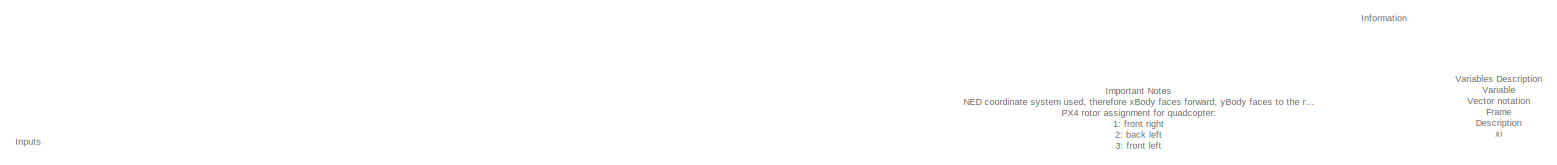
[diagram: root canvas - part 1/7, top center region]
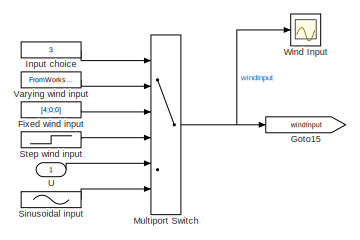
[diagram: root canvas - part 2/7, top left region]
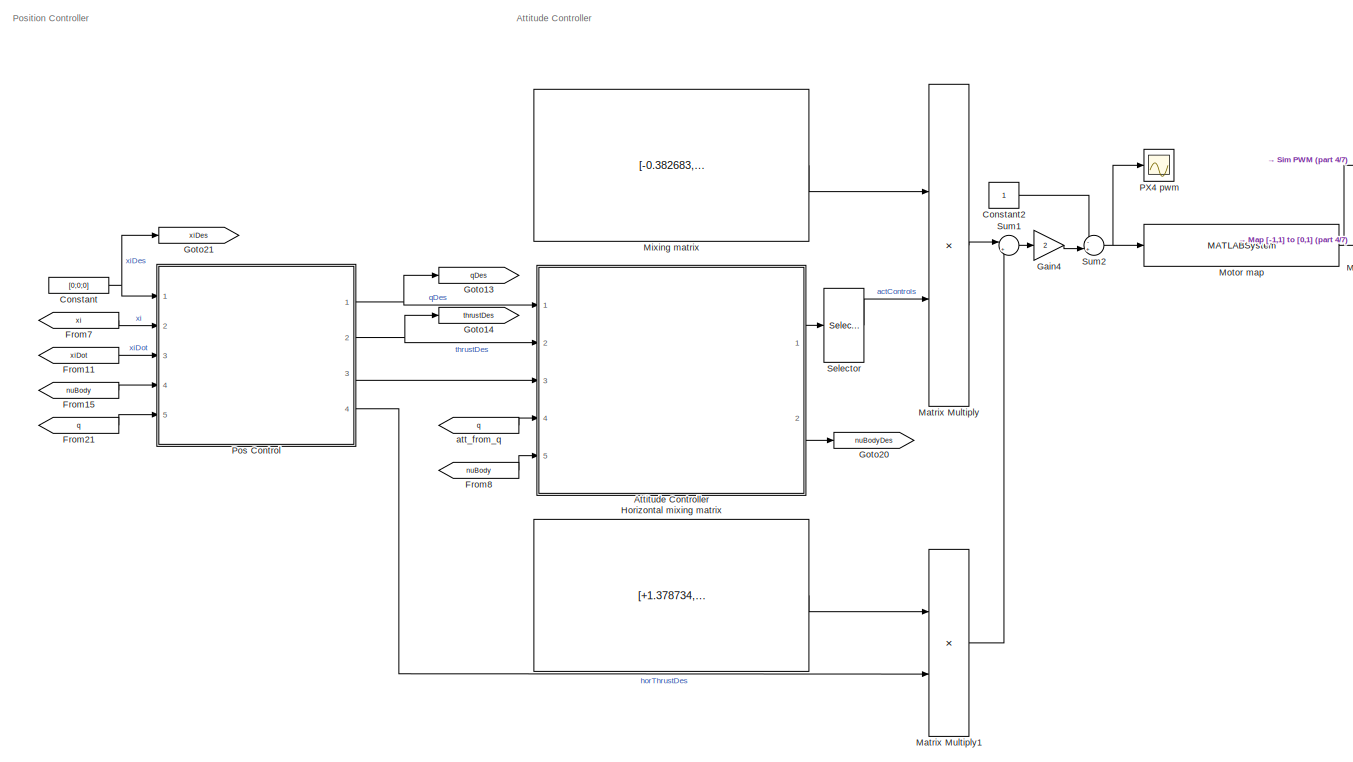
[diagram: root canvas - part 3/7, middle left region]
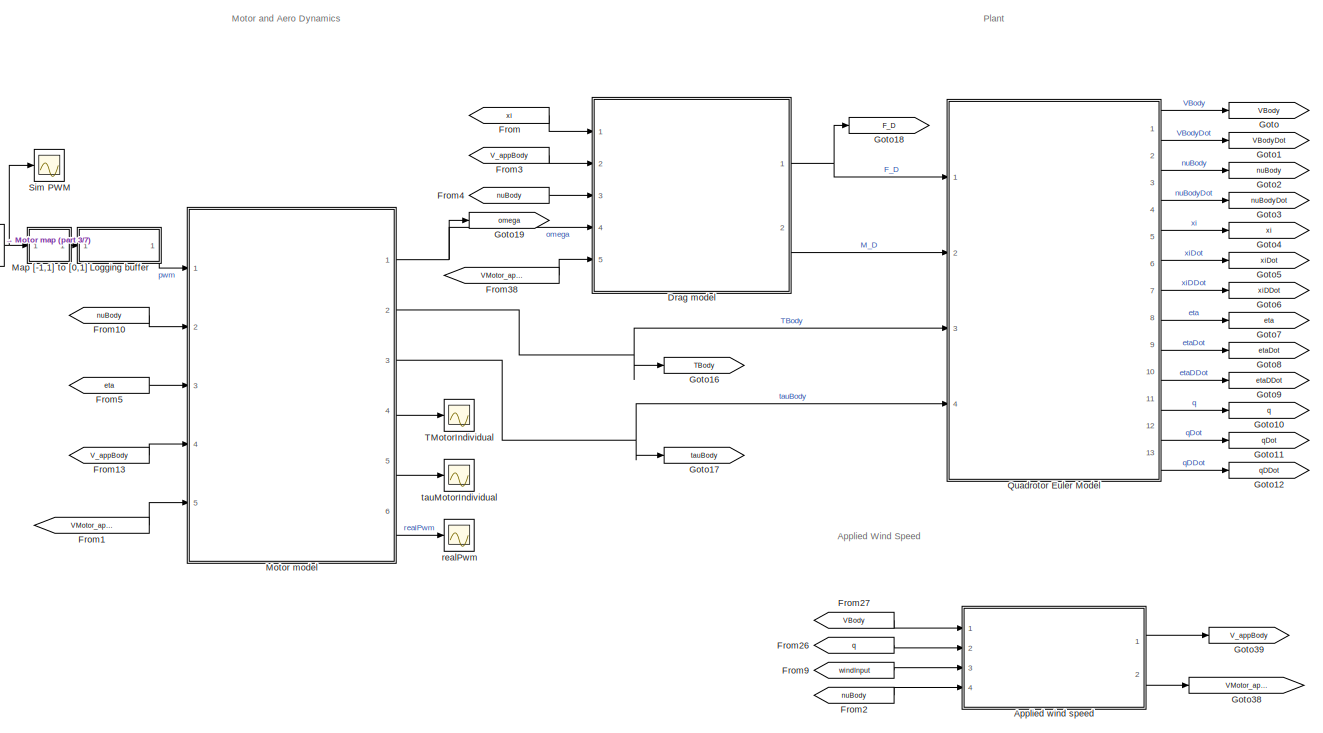
[diagram: root canvas - part 4/7, central region]
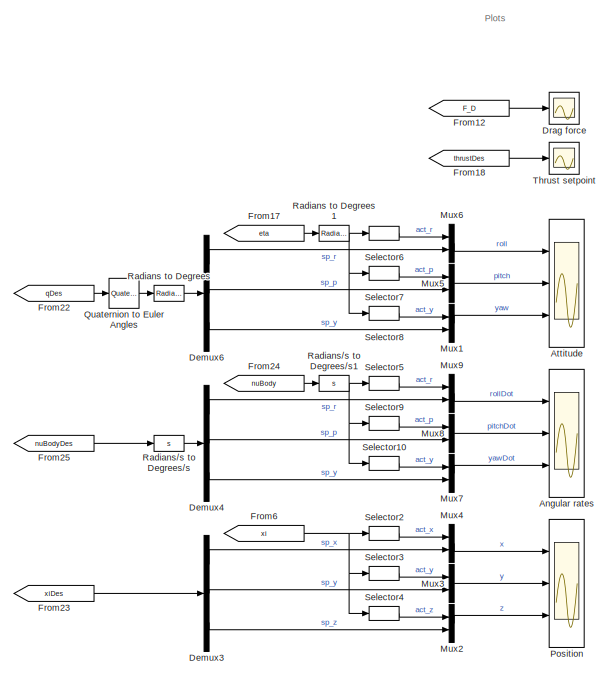
[diagram: root canvas - part 5/7, bottom center region]
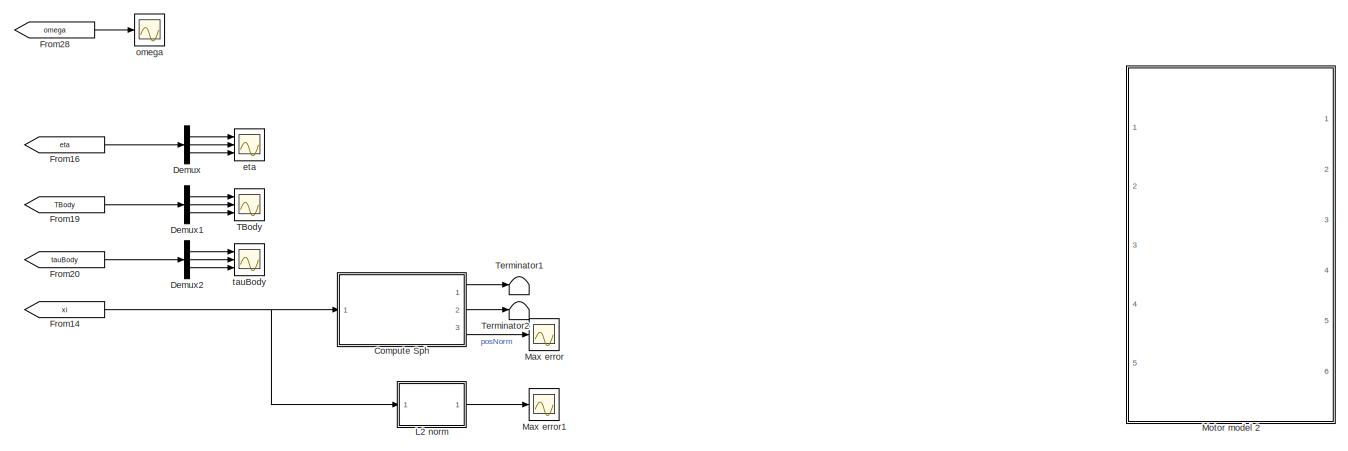
[diagram: root canvas - part 6/7, bottom right region]
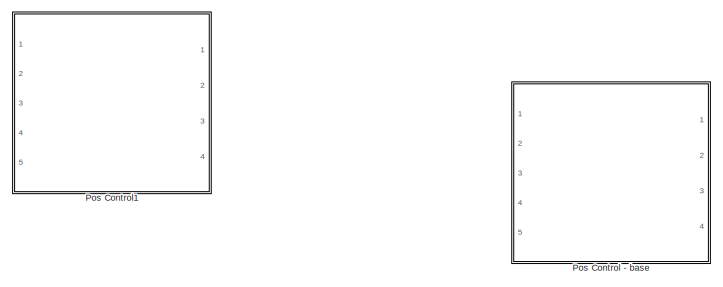
[diagram: root canvas - part 7/7, bottom left region]
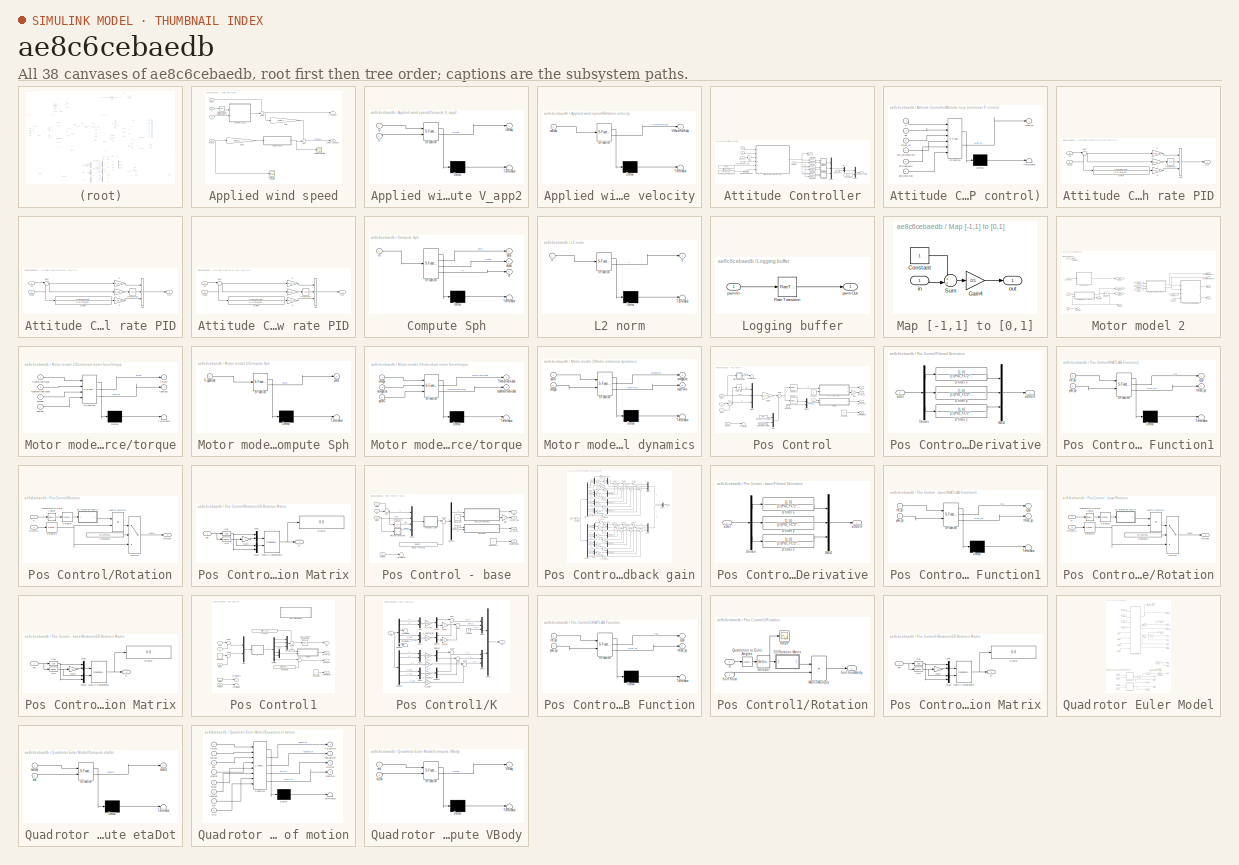
[diagram: thumbnail index - all 38 canvases of the model, root first then tree order]
MODEL slx_ae8c6cebaedb
KIND model
CONFIG AbsTol = auto
CONFIG EnableMultiTasking = on
CONFIG FixedStep = auto
CONFIG MaxStep = Simulation.TS_MAX
CONFIG MinStep = auto
CONFIG PreLoadFcn = % InitializeParameters;
CONFIG RelTol = 1e-3
CONFIG SampleTimeConstraint = Unconstrained
CONFIG SolverName = VariableStepAuto
CONFIG StartTime = 0.0
CONFIG StopTime = Simulation.T_END
BLOCK [Scope] Angular rates
  Floating = off
  NumInputPorts = 3
  Ports = [3]
  ScopeSpecificationString = Simulink.scopes.TimeScopeBlockCfg('CurrentConfiguration', extmgr.ConfigurationSet(extmgr.Configuration('Core','General UI',true),extmgr.Configuration('Core','Source UI',true),extmgr.Configuration('Sources','WiredSimulink',true,'DataLoggingVariableName','ScopeData1'),extmgr.Configuration('Visuals','Time Domain',true,'SerializedDisplays',{struct('MinYLimReal','-2.30552','MaxYLimReal','6.3064','YLabe...<+2801ch>
BLOCK [SubSystem] Applied wind speed
  Ports = [4, 2]
  RequestExecContextInheritance = off
BLOCK [SubSystem] Applied wind speed/Compute V_app2
  ErrorFcn = Stateflow.Translate.translate
  PermitHierarchicalResolution = ExplicitOnly
  Ports = [2, 1]
  RequestExecContextInheritance = off
  SFBlockType = MATLAB Function
  TreatAsAtomicUnit = on
BLOCK [Demux] Applied wind speed/Compute V_app2/ Demux 
  Outputs = 1
  Ports = [1, 1]
BLOCK [S-Function] Applied wind speed/Compute V_app2/ SFunction 
  EnableBusSupport = on
  FunctionName = sf_sfun
  PortCounts = [2 2]
  Ports = [2, 2]
  SFcnIsStateOwnerBlock = off
  SFunctionDeploymentMode = off
  Tag = Stateflow S-Function 5
BLOCK [Terminator] Applied wind speed/Compute V_app2/ Terminator 
BLOCK [Inport] Applied wind speed/Compute V_app2/Q
BLOCK [Inport] Applied wind speed/Compute V_app2/U
  Port = 2
BLOCK [Outport] Applied wind speed/Compute V_app2/UBody
  VectorParamsAs1DForOutWhenUnconnected = off
BLOCK [Gain] Applied wind speed/Gain
  Gain = ones(1,Uav.N_ROTORS)
  Multiplication = Matrix(u*K)
BLOCK [Gain] Applied wind speed/Gain1
  Gain = ones(1,Uav.N_ROTORS)
  Multiplication = Matrix(u*K)
BLOCK [Reference] Applied wind speed/Quaternion to Rotation Matrix1  REF=QuaternionLibrary/Quaternion
to Rotation Matrix
  Ports = [1, 1]
  SourceBlock = QuaternionLibrary/Quaternion\nto Rotation Matrix
BLOCK [Scope] Applied wind speed/Relative velocities
  Floating = off
  NumInputPorts = 1
  Ports = [1]
  ScopeSpecificationString = Simulink.scopes.TimeScopeBlockCfg('CurrentConfiguration', extmgr.ConfigurationSet(extmgr.Configuration('Core','General UI',true),extmgr.Configuration('Core','Source UI',true),extmgr.Configuration('Sources','WiredSimulink',true,'DataLoggingVariableName','ScopeData7'),extmgr.Configuration('Visuals','Time Domain',true,'SerializedDisplays',{struct('MinYLimReal','-0.10082','MaxYLimReal','0.10082','YLab...<+1971ch>
BLOCK [SubSystem] Applied wind speed/Relative velocity
  ErrorFcn = Stateflow.Translate.translate
  PermitHierarchicalResolution = ExplicitOnly
  Ports = [1, 1]
  RequestExecContextInheritance = off
  SFBlockType = MATLAB Function
  TreatAsAtomicUnit = on
BLOCK [Demux] Applied wind speed/Relative velocity/ Demux 
  Outputs = 1
  Ports = [1, 1]
BLOCK [S-Function] Applied wind speed/Relative velocity/ SFunction 
  EnableBusSupport = on
  FunctionName = sf_sfun
  Parameters = Uav
  PortCounts = [1 2]
  Ports = [1, 2]
  SFcnIsStateOwnerBlock = off
  SFunctionDeploymentMode = off
  Tag = Stateflow S-Function 4
BLOCK [Terminator] Applied wind speed/Relative velocity/ Terminator 
BLOCK [Outport] Applied wind speed/Relative velocity/VMotorRelBody
  VectorParamsAs1DForOutWhenUnconnected = off
BLOCK [Inport] Applied wind speed/Relative velocity/nuBody
BLOCK [Scope] Applied wind speed/Rotational velocities
  Floating = off
  NumInputPorts = 1
  Ports = [1]
  ScopeSpecificationString = Simulink.scopes.TimeScopeBlockCfg('CurrentConfiguration', extmgr.ConfigurationSet(extmgr.Configuration('Core','General UI',true),extmgr.Configuration('Core','Source UI',true),extmgr.Configuration('Sources','WiredSimulink',true,'DataLoggingVariableName','ScopeData8'),extmgr.Configuration('Visuals','Time Domain',true,'SerializedDisplays',{struct('MinYLimReal','-0.22625','MaxYLimReal','0.41313','YLab...<+1461ch>
BLOCK [Sum] Applied wind speed/Sum
  Inputs = ++|
  Ports = [2, 1]
BLOCK [Sum] Applied wind speed/Sum1
  Inputs = ++|
  Ports = [2, 1]
BLOCK [Inport] Applied wind speed/U
  Port = 3
  Unit = m/s
BLOCK [Inport] Applied wind speed/VBody
  Unit = m/s
BLOCK [Outport] Applied wind speed/VMotor_appBody
  Port = 2
  PortDimensions = [3,Uav.N_ROTORS]
  Unit = m/s
  VectorParamsAs1DForOutWhenUnconnected = off
BLOCK [Outport] Applied wind speed/V_appBody
  Unit = m/s
  VectorParamsAs1DForOutWhenUnconnected = off
BLOCK [Inport] Applied wind speed/nuBody
  Port = 4
  Unit = rad/s
BLOCK [Inport] Applied wind speed/q
  Port = 2
BLOCK [Scope] Attitude
  Floating = off
  NumInputPorts = 3
  Ports = [3]
  ScopeSpecificationString = Simulink.scopes.TimeScopeBlockCfg('CurrentConfiguration', extmgr.ConfigurationSet(extmgr.Configuration('Core','General UI',true),extmgr.Configuration('Core','Source UI',true),extmgr.Configuration('Sources','WiredSimulink',true,'DataLoggingVariableName','ScopeData2'),extmgr.Configuration('Visuals','Time Domain',true,'SerializedDisplays',{struct('MinYLimReal','-0.19785','MaxYLimReal','1.78066','YLab...<+3156ch>
BLOCK [SubSystem] Attitude Controller
  Ports = [5, 2]
  RequestExecContextInheritance = off
BLOCK [Constant] Attitude Controller/Attitude P gains
  Value = [ 6.5; 6.5; 2.8]
BLOCK [SubSystem] Attitude Controller/Attitude loop (nonlinear P control)
  ErrorFcn = Stateflow.Translate.translate
  PermitHierarchicalResolution = ExplicitOnly
  Ports = [6, 1]
  RequestExecContextInheritance = off
  SFBlockType = MATLAB Function
  TreatAsAtomicUnit = on
BLOCK [Demux] Attitude Controller/Attitude loop (nonlinear P control)/ Demux 
  Outputs = 1
  Ports = [1, 1]
BLOCK [S-Function] Attitude Controller/Attitude loop (nonlinear P control)/ SFunction 
  EnableBusSupport = on
  FunctionName = sf_sfun
  PortCounts = [6 2]
  Ports = [6, 2]
  SFcnIsStateOwnerBlock = off
  SFunctionDeploymentMode = off
  Tag = Stateflow S-Function 7
BLOCK [Terminator] Attitude Controller/Attitude loop (nonlinear P control)/ Terminator 
BLOCK [Inport] Attitude Controller/Attitude loop (nonlinear P control)/attitude_gain
  Port = 5
BLOCK [Inport] Attitude Controller/Attitude loop (nonlinear P control)/auto_rate_max
  Port = 6
BLOCK [Inport] Attitude Controller/Attitude loop (nonlinear P control)/q
BLOCK [Inport] Attitude Controller/Attitude loop (nonlinear P control)/qd
  Port = 2
BLOCK [Outport] Attitude Controller/Attitude loop (nonlinear P control)/rates_sp
  VectorParamsAs1DForOutWhenUnconnected = off
BLOCK [Inport] Attitude Controller/Attitude loop (nonlinear P control)/thrust_sp
  Port = 3
BLOCK [Inport] Attitude Controller/Attitude loop (nonlinear P control)/yaw_sp_move_rate
  Port = 4
BLOCK [Constant] Attitude Controller/Auto mode max rates (deg//s)
  Value = [220;220;200]
BLOCK [Constant] Attitude Controller/Constant5
  Value = [0;0;0;0]
BLOCK [Reference] Attitude Controller/Degrees to Radians  REF=simulink_extras/Transformations/Degrees to
Radians
  Ports = [1, 1]
  SourceBlock = simulink_extras/Transformations/Degrees to\nRadians
  SourceProductBaseCode = SL
  SourceType = DegreesToRadians
BLOCK [Gain] Attitude Controller/Gain
  Gain = -1
BLOCK [Mux] Attitude Controller/Mux
  DisplayOption = bar
  Inputs = 2
  Ports = [2, 1]
BLOCK [Mux] Attitude Controller/Mux1
  DisplayOption = bar
  Inputs = 2
  Ports = [2, 1]
BLOCK [Mux] Attitude Controller/Mux2
  DisplayOption = bar
  Inputs = 3
  Ports = [3, 1]
BLOCK [SubSystem] Attitude Controller/Pitch rate PID
  Ports = [2, 1]
  RequestExecContextInheritance = off
BLOCK [Sum] Attitude Controller/Pitch rate PID/Add
  IconShape = rectangular
  Inputs = ++-
  Ports = [3, 1]
BLOCK [Gain] Attitude Controller/Pitch rate PID/D
  Gain = PID_D
BLOCK [TransferFcn] Attitude Controller/Pitch rate PID/D filter
  ContinuousStateAttributes = PID_D_STATENAME
  Denominator = [1 2*(PID_FC*2*pi)*0.68  (PID_FC*2*pi)^2]
  Numerator = [(PID_FC*2*pi)^2 0]
BLOCK [Gain] Attitude Controller/Pitch rate PID/I
  Gain = PID_I
BLOCK [Integrator] Attitude Controller/Pitch rate PID/Integrator1
  ContinuousStateAttributes = PID_I_STATENAME
  LimitOutput = on
  LowerSaturationLimit = -0.3
  Ports = [1, 1]
  UpperSaturationLimit = 0.3
BLOCK [Outport] Attitude Controller/Pitch rate PID/Out
  VectorParamsAs1DForOutWhenUnconnected = off
BLOCK [Gain] Attitude Controller/Pitch rate PID/P
  Gain = PID_P
BLOCK [Sum] Attitude Controller/Pitch rate PID/Sum
  Inputs = |+-
  Ports = [2, 1]
BLOCK [Inport] Attitude Controller/Pitch rate PID/meas
  Port = 2
BLOCK [Inport] Attitude Controller/Pitch rate PID/ref
BLOCK [SubSystem] Attitude Controller/Roll rate PID
  Ports = [2, 1]
  RequestExecContextInheritance = off
BLOCK [Sum] Attitude Controller/Roll rate PID/Add
  IconShape = rectangular
  Inputs = ++-
  Ports = [3, 1]
BLOCK [Gain] Attitude Controller/Roll rate PID/D
  Gain = PID_D
BLOCK [TransferFcn] Attitude Controller/Roll rate PID/D filter
  ContinuousStateAttributes = PID_D_STATENAME
  Denominator = [1 2*(PID_FC*2*pi)*0.68  (PID_FC*2*pi)^2]
  Numerator = [(PID_FC*2*pi)^2 0]
BLOCK [Gain] Attitude Controller/Roll rate PID/I
  Gain = PID_I
BLOCK [Integrator] Attitude Controller/Roll rate PID/Integrator1
  ContinuousStateAttributes = PID_I_STATENAME
  LimitOutput = on
  LowerSaturationLimit = -0.3
  Ports = [1, 1]
  UpperSaturationLimit = 0.3
BLOCK [Outport] Attitude Controller/Roll rate PID/Out
  VectorParamsAs1DForOutWhenUnconnected = off
BLOCK [Gain] Attitude Controller/Roll rate PID/P
  Gain = PID_P
BLOCK [Sum] Attitude Controller/Roll rate PID/Sum
  Inputs = |+-
  Ports = [2, 1]
BLOCK [Inport] Attitude Controller/Roll rate PID/meas
  Port = 2
BLOCK [Inport] Attitude Controller/Roll rate PID/ref
BLOCK [Selector] Attitude Controller/Selector10
  IndexOptions = Index vector (dialog)
  Indices = 3
  InputPortWidth = 3
  OutputSizes = 1
  Ports = [1, 1]
BLOCK [Selector] Attitude Controller/Selector11
  IndexOptions = Index vector (dialog)
  Indices = 3
  InputPortWidth = 3
  OutputSizes = 1
  Ports = [1, 1]
BLOCK [Selector] Attitude Controller/Selector6
  IndexOptions = Index vector (dialog)
  Indices = 1
  InputPortWidth = 3
  OutputSizes = 1
  Ports = [1, 1]
BLOCK [Selector] Attitude Controller/Selector7
  IndexOptions = Index vector (dialog)
  Indices = 1
  InputPortWidth = 3
  OutputSizes = 1
  Ports = [1, 1]
BLOCK [Selector] Attitude Controller/Selector8
  IndexOptions = Index vector (dialog)
  Indices = 2
  InputPortWidth = 3
  OutputSizes = 1
  Ports = [1, 1]
BLOCK [Selector] Attitude Controller/Selector9
  IndexOptions = Index vector (dialog)
  Indices = 2
  InputPortWidth = 3
  OutputSizes = 1
  Ports = [1, 1]
BLOCK [SubSystem] Attitude Controller/Yaw rate PID
  Ports = [2, 1]
  RequestExecContextInheritance = off
BLOCK [Sum] Attitude Controller/Yaw rate PID/Add
  IconShape = rectangular
  Inputs = ++-
  Ports = [3, 1]
BLOCK [Gain] Attitude Controller/Yaw rate PID/D
  Gain = PID_D
BLOCK [TransferFcn] Attitude Controller/Yaw rate PID/D filter
  ContinuousStateAttributes = PID_D_STATENAME
  Denominator = [1 2*(PID_FC*2*pi)*0.68  (PID_FC*2*pi)^2]
  Numerator = [(PID_FC*2*pi)^2 0]
BLOCK [Gain] Attitude Controller/Yaw rate PID/I
  Gain = PID_I
BLOCK [Integrator] Attitude Controller/Yaw rate PID/Integrator1
  ContinuousStateAttributes = PID_I_STATENAME
  LimitOutput = on
  LowerSaturationLimit = -0.3
  Ports = [1, 1]
  UpperSaturationLimit = 0.3
BLOCK [Outport] Attitude Controller/Yaw rate PID/Out
  VectorParamsAs1DForOutWhenUnconnected = off
BLOCK [Gain] Attitude Controller/Yaw rate PID/P
  Gain = PID_P
BLOCK [Sum] Attitude Controller/Yaw rate PID/Sum
  Inputs = |+-
  Ports = [2, 1]
BLOCK [Inport] Attitude Controller/Yaw rate PID/meas
  Port = 2
BLOCK [Inport] Attitude Controller/Yaw rate PID/ref
BLOCK [Outport] Attitude Controller/actuators_control
  PortDimensions = 8
  VectorParamsAs1DForOutWhenUnconnected = off
BLOCK [Inport] Attitude Controller/nuBody
  Port = 5
BLOCK [Inport] Attitude Controller/q
  Port = 4
BLOCK [Inport] Attitude Controller/qd
BLOCK [Outport] Attitude Controller/rates_sp
  Port = 2
  VectorParamsAs1DForOutWhenUnconnected = off
BLOCK [Inport] Attitude Controller/thrust_sp
  Port = 2
  PortDimensions = 1
BLOCK [InportShadow] Attitude Controller/thrust_sp1
  Port = 2
  PortDimensions = 1
BLOCK [Inport] Attitude Controller/yaw_sp_move_rate
  Port = 3
BLOCK [SubSystem] Compute Sph
  ErrorFcn = Stateflow.Translate.translate
  PermitHierarchicalResolution = ExplicitOnly
  Ports = [1, 3]
  RequestExecContextInheritance = off
  SFBlockType = MATLAB Function
  TreatAsAtomicUnit = on
BLOCK [Demux] Compute Sph/ Demux 
  Outputs = 1
  Ports = [1, 1]
BLOCK [S-Function] Compute Sph/ SFunction 
  EnableBusSupport = on
  FunctionName = sf_sfun
  PortCounts = [1 4]
  Ports = [1, 4]
  SFcnIsStateOwnerBlock = off
  SFunctionDeploymentMode = off
  Tag = Stateflow S-Function 8
BLOCK [Terminator] Compute Sph/ Terminator 
BLOCK [Outport] Compute Sph/R
  Port = 3
  VectorParamsAs1DForOutWhenUnconnected = off
BLOCK [Outport] Compute Sph/alpha
  Port = 2
  VectorParamsAs1DForOutWhenUnconnected = off
BLOCK [Outport] Compute Sph/beta
  VectorParamsAs1DForOutWhenUnconnected = off
BLOCK [Inport] Compute Sph/in
BLOCK [Constant] Constant
  Value = [0;0;0]
BLOCK [Constant] Constant2
BLOCK [Demux] Demux
  Outputs = 3
  Ports = [1, 3]
BLOCK [Demux] Demux1
  Outputs = 3
  Ports = [1, 3]
BLOCK [Demux] Demux2
  Outputs = 3
  Ports = [1, 3]
BLOCK [Demux] Demux3
  Outputs = 3
  Ports = [1, 3]
BLOCK [Demux] Demux4
  Outputs = 3
  Ports = [1, 3]
BLOCK [Demux] Demux6
  Outputs = 3
  Ports = [1, 3]
BLOCK [Scope] Drag force
  Floating = off
  NumInputPorts = 1
  Ports = [1]
  ScopeSpecificationString = Simulink.scopes.TimeScopeBlockCfg('CurrentConfiguration', extmgr.ConfigurationSet(extmgr.Configuration('Core','General UI',true),extmgr.Configuration('Core','Source UI',true),extmgr.Configuration('Sources','WiredSimulink',true,'DataLoggingVariableName','ScopeData3'),extmgr.Configuration('Visuals','Time Domain',true,'SerializedDisplays',{struct('MinYLimReal','-0.87753','MaxYLimReal','0.20159','YLab...<+1430ch>
BLOCK [ModelReference] Drag model
  ModelNameDialog = DragModelAIAAv3
  ModelReferenceVersion = 5.2
  Ports = [5, 2]
BLOCK [Constant] Fixed wind input
  Value = [4;0;0]
BLOCK [From] From
  GotoTag = xi
BLOCK [From] From1
  GotoTag = VMotor_appBody
BLOCK [From] From10
  GotoTag = nuBody
BLOCK [From] From11
  GotoTag = xiDot
BLOCK [From] From12
  GotoTag = F_D
BLOCK [From] From13
  GotoTag = V_appBody
BLOCK [From] From14
  GotoTag = xi
BLOCK [From] From15
  GotoTag = nuBody
BLOCK [From] From16
  GotoTag = eta
BLOCK [From] From17
  GotoTag = eta
BLOCK [From] From18
  GotoTag = thrustDes
BLOCK [From] From19
  GotoTag = TBody
BLOCK [From] From2
  GotoTag = nuBody
BLOCK [From] From20
  GotoTag = tauBody
BLOCK [From] From21
  GotoTag = q
BLOCK [From] From22
  GotoTag = qDes
BLOCK [From] From23
  GotoTag = xiDes
BLOCK [From] From24
  GotoTag = nuBody
BLOCK [From] From25
  GotoTag = nuBodyDes
BLOCK [From] From26
  GotoTag = q
BLOCK [From] From27
  GotoTag = VBody
BLOCK [From] From28
  GotoTag = omega
BLOCK [From] From3
  GotoTag = V_appBody
BLOCK [From] From38
  GotoTag = VMotor_appBody
BLOCK [From] From4
  GotoTag = nuBody
BLOCK [From] From5
  GotoTag = eta
BLOCK [From] From6
  GotoTag = xi
BLOCK [From] From7
  GotoTag = xi
BLOCK [From] From8
  GotoTag = nuBody
BLOCK [From] From9
  GotoTag = windInput
BLOCK [Gain] Gain4
  Gain = 2
BLOCK [Goto] Goto
  GotoTag = VBody
BLOCK [Goto] Goto1
  GotoTag = VBodyDot
BLOCK [Goto] Goto10
  GotoTag = q
BLOCK [Goto] Goto11
  GotoTag = qDot
BLOCK [Goto] Goto12
  GotoTag = qDDot
BLOCK [Goto] Goto13
  GotoTag = qDes
BLOCK [Goto] Goto14
  GotoTag = thrustDes
BLOCK [Goto] Goto15
  GotoTag = windInput
BLOCK [Goto] Goto16
  GotoTag = TBody
BLOCK [Goto] Goto17
  GotoTag = tauBody
BLOCK [Goto] Goto18
  GotoTag = F_D
BLOCK [Goto] Goto19
  GotoTag = omega
BLOCK [Goto] Goto2
  GotoTag = nuBody
BLOCK [Goto] Goto20
  GotoTag = nuBodyDes
BLOCK [Goto] Goto21
  GotoTag = xiDes
BLOCK [Goto] Goto3
  GotoTag = nuBodyDot
BLOCK [Goto] Goto38
  GotoTag = VMotor_appBody
BLOCK [Goto] Goto39
  GotoTag = V_appBody
BLOCK [Goto] Goto4
  GotoTag = xi
BLOCK [Goto] Goto5
  GotoTag = xiDot
BLOCK [Goto] Goto6
  GotoTag = xiDDot
BLOCK [Goto] Goto7
  GotoTag = eta
BLOCK [Goto] Goto8
  GotoTag = etaDot
BLOCK [Goto] Goto9
  GotoTag = etaDDot
BLOCK [Constant] Horizontal mixing matrix
  Value = [+1.378734, -3.328559;\n -1.378734, +3.328559;\n -3.328559, +1.378734;\n -1.378734, -3.328559;\n +1.378734, +3.328559;\n +3.328559, -1.378734;\n -3.328559, -1.378734;\n +3.328559, +1.378734]
BLOCK [Constant] Input choice
  Value = 3
BLOCK [SubSystem] L2 norm
  ErrorFcn = Stateflow.Translate.translate
  PermitHierarchicalResolution = ExplicitOnly
  Ports = [1, 1]
  RequestExecContextInheritance = off
  SFBlockType = MATLAB Function
  TreatAsAtomicUnit = on
BLOCK [Demux] L2 norm/ Demux 
  Outputs = 1
  Ports = [1, 1]
BLOCK [S-Function] L2 norm/ SFunction 
  EnableBusSupport = on
  FunctionName = sf_sfun
  PortCounts = [1 2]
  Ports = [1, 2]
  SFcnIsStateOwnerBlock = off
  SFunctionDeploymentMode = off
  Tag = Stateflow S-Function 15
BLOCK [Terminator] L2 norm/ Terminator 
BLOCK [Inport] L2 norm/u
BLOCK [Outport] L2 norm/y
  VectorParamsAs1DForOutWhenUnconnected = off
BLOCK [SubSystem] Logging buffer
  Ports = [1, 1]
  RequestExecContextInheritance = off
BLOCK [RateTransition] Logging buffer/Rate Transition
  Commented = through
  SCDEnableBlockLinearizationSpecification = on
BLOCK [Inport] Logging buffer/pwmIn
BLOCK [Outport] Logging buffer/pwmOut
  VectorParamsAs1DForOutWhenUnconnected = off
BLOCK [SubSystem] Map [-1,1] to [0,1]
  Ports = [1, 1]
  RequestExecContextInheritance = off
BLOCK [Constant] Map [-1,1] to [0,1]/Constant
BLOCK [Gain] Map [-1,1] to [0,1]/Gain4
  Gain = 0.5
BLOCK [Sum] Map [-1,1] to [0,1]/Sum
  Inputs = ++|
  Ports = [2, 1]
BLOCK [Inport] Map [-1,1] to [0,1]/in
BLOCK [Outport] Map [-1,1] to [0,1]/out
  VectorParamsAs1DForOutWhenUnconnected = off
BLOCK [Product] Matrix Multiply
  Multiplication = Matrix(*)
  Ports = [2, 1]
BLOCK [Product] Matrix Multiply1
  Multiplication = Matrix(*)
  Ports = [2, 1]
BLOCK [Scope] Max error
  Floating = off
  NumInputPorts = 1
  Ports = [1]
  ScopeSpecificationString = Simulink.scopes.TimeScopeBlockCfg('CurrentConfiguration', extmgr.ConfigurationSet(extmgr.Configuration('Core','General UI',true),extmgr.Configuration('Core','Source UI',true),extmgr.Configuration('Sources','WiredSimulink',true,'DataLoggingVariableName','ScopeData4'),extmgr.Configuration('Visuals','Time Domain',true,'SerializedDisplays',{struct('MinYLimReal','-0.00075','MaxYLimReal','0.00675','YLab...<+1439ch>
BLOCK [Scope] Max error1
  Floating = off
  NumInputPorts = 1
  Ports = [1]
  ScopeSpecificationString = Simulink.scopes.TimeScopeBlockCfg('CurrentConfiguration', extmgr.ConfigurationSet(extmgr.Configuration('Core','General UI',true),extmgr.Configuration('Core','Source UI',true),extmgr.Configuration('Sources','WiredSimulink',true,'DataLoggingVariableName','ScopeData5'),extmgr.Configuration('Visuals','Time Domain',true,'SerializedDisplays',{struct('MinYLimReal','-0.00075','MaxYLimReal','0.00675','YLab...<+1439ch>
BLOCK [Constant] Mixing matrix
  Value = [-0.382683,  0.923880, -1.000000,  1.000000 ;\n  0.382683, -0.923880, -1.000000,  1.000000 ;\n -0.923880,  0.382683,  1.000000,  1.000000 ;\n -0.382683, -0.923880,  1.000000,  1.000000 ;\n  0.382683,  0.923880,  1.000000,  1.000000 ;\n  0.923880, -0.382683,  1.000000,  1.000000 ;\n  0.923880,  0.382683, -1.000000,  1.000000 ;\n -0.923880, -0.382683, -1.000000,  1.000000 ]
BLOCK [MATLABSystem] Motor map
  MaskDisplay = disp(['MOTOR' char(10) 'MAP' char(10) 'octa_x']);\nport_label('input',1,'px4PWM');\nport_label('output',1,'simPWM');
  MaskType = MotorMap
  Ports = [1, 1]
  SimulateUsing = Code generation
  System = MotorMap
  airframeConfig = 5
BLOCK [ModelReference] Motor model
  ModelNameDialog = MotorModelZJChen
  ModelReferenceVersion = 5.6
  Ports = [5, 6]
BLOCK [SubSystem] Motor model 2
  Commented = on
  Ports = [5, 6]
  RequestExecContextInheritance = off
BLOCK [SubSystem] Motor model 2/Combined motor force//torque
  ErrorFcn = Stateflow.Translate.translate
  PermitHierarchicalResolution = ExplicitOnly
  Ports = [4, 2]
  RequestExecContextInheritance = off
  SFBlockType = MATLAB Function
  TreatAsAtomicUnit = on
BLOCK [Demux] Motor model 2/Combined motor force//torque/ Demux 
  Outputs = 1
  Ports = [1, 1]
BLOCK [S-Function] Motor model 2/Combined motor force//torque/ SFunction 
  EnableBusSupport = on
  FunctionName = sf_sfun
  Parameters = Motor,Uav
  PortCounts = [4 3]
  Ports = [4, 3]
  SFcnIsStateOwnerBlock = off
  SFunctionDeploymentMode = off
  Tag = Stateflow S-Function 18
BLOCK [Terminator] Motor model 2/Combined motor force//torque/ Terminator 
BLOCK [Outport] Motor model 2/Combined motor force//torque/TBody
  VectorParamsAs1DForOutWhenUnconnected = off
BLOCK [Inport] Motor model 2/Combined motor force//torque/TMotorIndividual
BLOCK [Inport] Motor model 2/Combined motor force//torque/nuBody
  Port = 4
BLOCK [Inport] Motor model 2/Combined motor force//torque/omega
  Port = 3
BLOCK [Outport] Motor model 2/Combined motor force//torque/tauBody
  Port = 2
  VectorParamsAs1DForOutWhenUnconnected = off
BLOCK [Inport] Motor model 2/Combined motor force//torque/tauMotorIndividual
  Port = 2
BLOCK [SubSystem] Motor model 2/Compute Sph
  ErrorFcn = Stateflow.Translate.translate
  PermitHierarchicalResolution = ExplicitOnly
  Ports = [1, 1]
  RequestExecContextInheritance = off
  SFBlockType = MATLAB Function
  TreatAsAtomicUnit = on
BLOCK [Demux] Motor model 2/Compute Sph/ Demux 
  Outputs = 1
  Ports = [1, 1]
BLOCK [S-Function] Motor model 2/Compute Sph/ SFunction 
  EnableBusSupport = on
  FunctionName = sf_sfun
  PortCounts = [1 2]
  Ports = [1, 2]
  SFcnIsStateOwnerBlock = off
  SFunctionDeploymentMode = off
  Tag = Stateflow S-Function 16
BLOCK [Terminator] Motor model 2/Compute Sph/ Terminator 
BLOCK [Inport] Motor model 2/Compute Sph/V_appBody
BLOCK [Outport] Motor model 2/Compute Sph/polar
  VectorParamsAs1DForOutWhenUnconnected = off
BLOCK [From] Motor model 2/From1
  GotoTag = omegaDot
BLOCK [From] Motor model 2/From3
  GotoTag = omega
BLOCK [From] Motor model 2/From5
  GotoTag = omega
BLOCK [From] Motor model 2/From6
  GotoTag = polar
BLOCK [Goto] Motor model 2/Goto1
  GotoTag = omegaDot
BLOCK [Goto] Motor model 2/Goto2
  GotoTag = omega
BLOCK [Goto] Motor model 2/Goto33
  GotoTag = polar
BLOCK [SubSystem] Motor model 2/Individual motor force//torque
  ErrorFcn = Stateflow.Translate.translate
  PermitHierarchicalResolution = ExplicitOnly
  Ports = [3, 2]
  RequestExecContextInheritance = off
  SFBlockType = MATLAB Function
  TreatAsAtomicUnit = on
BLOCK [Demux] Motor model 2/Individual motor force//torque/ Demux 
  Outputs = 1
  Ports = [1, 1]
BLOCK [S-Function] Motor model 2/Individual motor force//torque/ SFunction 
  EnableBusSupport = on
  FunctionName = sf_sfun
  Parameters = Aero,Motor,Uav
  PortCounts = [3 3]
  Ports = [3, 3]
  SFcnIsStateOwnerBlock = off
  SFunctionDeploymentMode = off
  Tag = Stateflow S-Function 17
BLOCK [Terminator] Motor model 2/Individual motor force//torque/ Terminator 
BLOCK [Outport] Motor model 2/Individual motor force//torque/TMotorIndividual
  VectorParamsAs1DForOutWhenUnconnected = off
BLOCK [Inport] Motor model 2/Individual motor force//torque/omega
BLOCK [Inport] Motor model 2/Individual motor force//torque/omegaDot
  Port = 2
BLOCK [Inport] Motor model 2/Individual motor force//torque/polarC
  Port = 3
BLOCK [Outport] Motor model 2/Individual motor force//torque/tauMotorIndividual
  Port = 2
  VectorParamsAs1DForOutWhenUnconnected = off
BLOCK [Integrator] Motor model 2/Integrator
  ContinuousStateAttributes = 'omega'
  InitialCondition = Initial.OMEGA
  LimitOutput = on
  LowerSaturationLimit = zeros(size(Initial.OMEGA))
  Ports = [1, 1]
BLOCK [SubSystem] Motor model 2/Motor rotational dynamics
  ErrorFcn = Stateflow.Translate.translate
  PermitHierarchicalResolution = ExplicitOnly
  Ports = [2, 2]
  RequestExecContextInheritance = off
  SFBlockType = MATLAB Function
  TreatAsAtomicUnit = on
BLOCK [Demux] Motor model 2/Motor rotational dynamics/ Demux 
  Outputs = 1
  Ports = [1, 1]
BLOCK [S-Function] Motor model 2/Motor rotational dynamics/ SFunction 
  EnableBusSupport = on
  FunctionName = sf_sfun
  PortCounts = [2 3]
  Ports = [2, 3]
  SFcnIsStateOwnerBlock = off
  SFunctionDeploymentMode = off
  Tag = Stateflow S-Function 19
BLOCK [Terminator] Motor model 2/Motor rotational dynamics/ Terminator 
BLOCK [Inport] Motor model 2/Motor rotational dynamics/omega
  Port = 2
BLOCK [Outport] Motor model 2/Motor rotational dynamics/omegaDot
  VectorParamsAs1DForOutWhenUnconnected = off
BLOCK [Inport] Motor model 2/Motor rotational dynamics/pwm
BLOCK [Outport] Motor model 2/Motor rotational dynamics/realPwm
  Port = 2
  VectorParamsAs1DForOutWhenUnconnected = off
BLOCK [Outport] Motor model 2/TBody
  Port = 2
  Unit = N
  VectorParamsAs1DForOutWhenUnconnected = off
BLOCK [Outport] Motor model 2/TMotorIndividual
  Port = 4
  PortDimensions = [3,Uav.N_ROTORS]
  Unit = N
  VectorParamsAs1DForOutWhenUnconnected = off
BLOCK [Terminator] Motor model 2/Terminator
BLOCK [Terminator] Motor model 2/Terminator1
BLOCK [Inport] Motor model 2/VMotor_appBody
  Port = 5
  PortDimensions = [3,Uav.N_ROTORS]
  Unit = m/s
BLOCK [Inport] Motor model 2/V_appBody
  Port = 4
  PortDimensions = 3
  Unit = m/s
BLOCK [Inport] Motor model 2/eta
  Port = 3
  PortDimensions = 3
  Unit = rad
BLOCK [Inport] Motor model 2/nuBody
  Port = 2
  PortDimensions = 3
  Unit = rad/s
BLOCK [Outport] Motor model 2/omega
  Unit = rad/s
  VectorParamsAs1DForOutWhenUnconnected = off
BLOCK [Inport] Motor model 2/pwm
  PortDimensions = Uav.N_ROTORS
BLOCK [Outport] Motor model 2/realPwm
  Port = 6
  VectorParamsAs1DForOutWhenUnconnected = off
BLOCK [Outport] Motor model 2/tauBody
  Port = 3
  Unit = N*m
  VectorParamsAs1DForOutWhenUnconnected = off
BLOCK [Outport] Motor model 2/tauMotorIndividual
  Port = 5
  PortDimensions = [3,Uav.N_ROTORS]
  Unit = N
  VectorParamsAs1DForOutWhenUnconnected = off
BLOCK [MultiPortSwitch] Multiport Switch
  InputSameDT = off
  Inputs = 5
  Ports = [6, 1]
  SaturateOnIntegerOverflow = off
BLOCK [Mux] Mux1
  DisplayOption = bar
  Inputs = 2
  Ports = [2, 1]
BLOCK [Mux] Mux2
  DisplayOption = bar
  Inputs = 2
  Ports = [2, 1]
BLOCK [Mux] Mux3
  DisplayOption = bar
  Inputs = 2
  Ports = [2, 1]
BLOCK [Mux] Mux4
  DisplayOption = bar
  Inputs = 2
  Ports = [2, 1]
BLOCK [Mux] Mux5
  DisplayOption = bar
  Inputs = 2
  Ports = [2, 1]
BLOCK [Mux] Mux6
  DisplayOption = bar
  Inputs = 2
  Ports = [2, 1]
BLOCK [Mux] Mux7
  DisplayOption = bar
  Inputs = 2
  Ports = [2, 1]
BLOCK [Mux] Mux8
  DisplayOption = bar
  Inputs = 2
  Ports = [2, 1]
BLOCK [Mux] Mux9
  DisplayOption = bar
  Inputs = 2
  Ports = [2, 1]
BLOCK [Scope] PX4 pwm
  Floating = off
  NumInputPorts = 1
  Ports = [1]
  ScopeSpecificationString = Simulink.scopes.TimeScopeBlockCfg('CurrentConfiguration', extmgr.ConfigurationSet(extmgr.Configuration('Core','General UI',true),extmgr.Configuration('Core','Source UI',true),extmgr.Configuration('Sources','WiredSimulink',true,'DataLoggingVariableName','ScopeData1'),extmgr.Configuration('Visuals','Time Domain',true,'SerializedDisplays',{struct('MinYLimReal','-0.28344','MaxYLimReal','0.18481','YLab...<+2328ch>
BLOCK [SubSystem] Pos Control
  Ports = [5, 4]
  RequestExecContextInheritance = off
BLOCK [SubSystem] Pos Control - base
  Commented = on
  Ports = [5, 4]
  RequestExecContextInheritance = off
BLOCK [Constant] Pos Control - base/Constant
  Value = 0
BLOCK [Constant] Pos Control - base/Constant1
  Value = 0
BLOCK [Demux] Pos Control - base/Demux1
  Outputs = 2
  Ports = [1, 2]
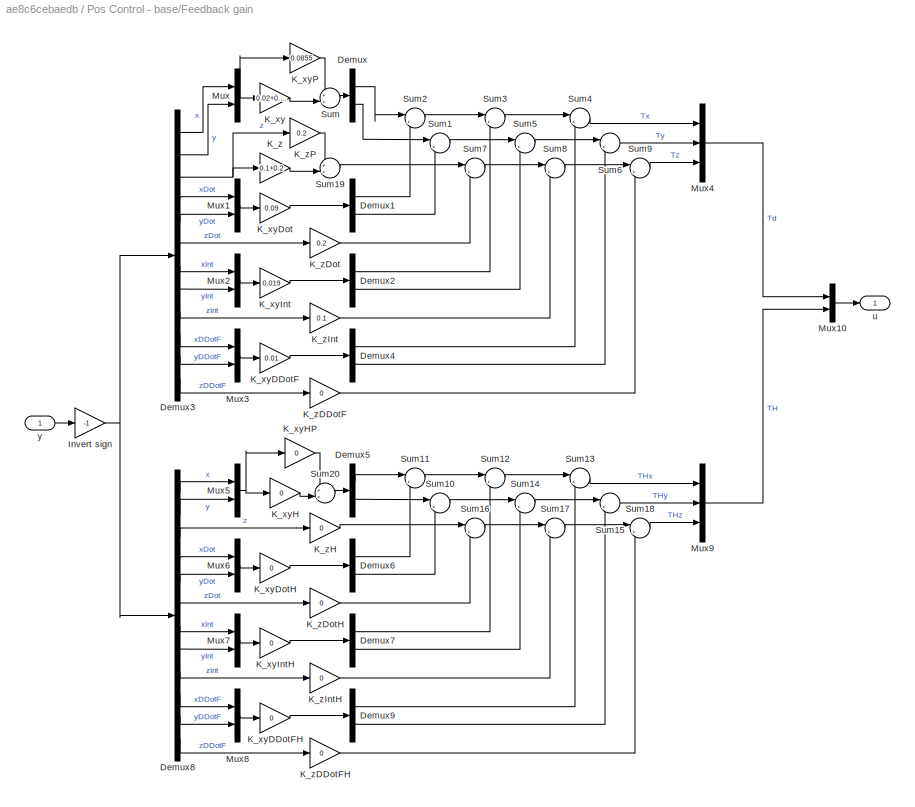
BLOCK [SubSystem] Pos Control - base/Feedback gain
  Ports = [1, 1]
  RequestExecContextInheritance = off
BLOCK [Demux] Pos Control - base/Feedback gain/Demux
  Outputs = 2
  Ports = [1, 2]
BLOCK [Demux] Pos Control - base/Feedback gain/Demux1
  Outputs = 2
  Ports = [1, 2]
BLOCK [Demux] Pos Control - base/Feedback gain/Demux2
  Outputs = 2
  Ports = [1, 2]
BLOCK [Demux] Pos Control - base/Feedback gain/Demux3
  Outputs = 12
  Ports = [1, 12]
BLOCK [Demux] Pos Control - base/Feedback gain/Demux4
  Outputs = 2
  Ports = [1, 2]
BLOCK [Demux] Pos Control - base/Feedback gain/Demux5
  Outputs = 2
  Ports = [1, 2]
BLOCK [Demux] Pos Control - base/Feedback gain/Demux6
  Outputs = 2
  Ports = [1, 2]
BLOCK [Demux] Pos Control - base/Feedback gain/Demux7
  Outputs = 2
  Ports = [1, 2]
BLOCK [Demux] Pos Control - base/Feedback gain/Demux8
  Outputs = 12
  Ports = [1, 12]
BLOCK [Demux] Pos Control - base/Feedback gain/Demux9
  Outputs = 2
  Ports = [1, 2]
BLOCK [Gain] Pos Control - base/Feedback gain/Invert sign
  Gain = -1
BLOCK [Gain] Pos Control - base/Feedback gain/K_xy
  Gain = 0.02+0.0855
BLOCK [Gain] Pos Control - base/Feedback gain/K_xyDDotF
  Gain = 0.01
BLOCK [Gain] Pos Control - base/Feedback gain/K_xyDDotFH
  Gain = 0
BLOCK [Gain] Pos Control - base/Feedback gain/K_xyDot
  Gain = 0.09
BLOCK [Gain] Pos Control - base/Feedback gain/K_xyDotH
  Gain = 0
BLOCK [Gain] Pos Control - base/Feedback gain/K_xyH
  Gain = 0
BLOCK [Gain] Pos Control - base/Feedback gain/K_xyHP
  Commented = on
  Gain = 0
BLOCK [Gain] Pos Control - base/Feedback gain/K_xyInt
  Gain = 0.019
BLOCK [Gain] Pos Control - base/Feedback gain/K_xyIntH
  Gain = 0
BLOCK [Gain] Pos Control - base/Feedback gain/K_xyP
  Commented = on
  Gain = 0.0855
BLOCK [Gain] Pos Control - base/Feedback gain/K_z
  Gain = 0.1+0.2
BLOCK [Gain] Pos Control - base/Feedback gain/K_zDDotF
  Gain = 0
BLOCK [Gain] Pos Control - base/Feedback gain/K_zDDotFH
  Commented = on
  Gain = 0
BLOCK [Gain] Pos Control - base/Feedback gain/K_zDot
  Gain = 0.2
BLOCK [Gain] Pos Control - base/Feedback gain/K_zDotH
  Commented = on
  Gain = 0
BLOCK [Gain] Pos Control - base/Feedback gain/K_zH
  Commented = on
  Gain = 0
BLOCK [Gain] Pos Control - base/Feedback gain/K_zInt
  Gain = 0.1
BLOCK [Gain] Pos Control - base/Feedback gain/K_zIntH
  Commented = on
  Gain = 0
BLOCK [Gain] Pos Control - base/Feedback gain/K_zP
  Commented = on
  Gain = 0.2
BLOCK [Mux] Pos Control - base/Feedback gain/Mux
  DisplayOption = bar
  Inputs = 2
  Ports = [2, 1]
BLOCK [Mux] Pos Control - base/Feedback gain/Mux1
  DisplayOption = bar
  Inputs = 2
  Ports = [2, 1]
BLOCK [Mux] Pos Control - base/Feedback gain/Mux10
  DisplayOption = bar
  Inputs = 2
  Ports = [2, 1]
BLOCK [Mux] Pos Control - base/Feedback gain/Mux2
  DisplayOption = bar
  Inputs = 2
  Ports = [2, 1]
BLOCK [Mux] Pos Control - base/Feedback gain/Mux3
  DisplayOption = bar
  Inputs = 2
  Ports = [2, 1]
BLOCK [Mux] Pos Control - base/Feedback gain/Mux4
  DisplayOption = bar
  Inputs = 3
  Ports = [3, 1]
BLOCK [Mux] Pos Control - base/Feedback gain/Mux5
  DisplayOption = bar
  Inputs = 2
  Ports = [2, 1]
BLOCK [Mux] Pos Control - base/Feedback gain/Mux6
  DisplayOption = bar
  Inputs = 2
  Ports = [2, 1]
BLOCK [Mux] Pos Control - base/Feedback gain/Mux7
  DisplayOption = bar
  Inputs = 2
  Ports = [2, 1]
BLOCK [Mux] Pos Control - base/Feedback gain/Mux8
  DisplayOption = bar
  Inputs = 2
  Ports = [2, 1]
BLOCK [Mux] Pos Control - base/Feedback gain/Mux9
  DisplayOption = bar
  Inputs = 3
  Ports = [3, 1]
BLOCK [Sum] Pos Control - base/Feedback gain/Sum
  Inputs = ++|
  Ports = [2, 1]
BLOCK [Sum] Pos Control - base/Feedback gain/Sum1
  Inputs = |++
  Ports = [2, 1]
BLOCK [Sum] Pos Control - base/Feedback gain/Sum10
  Inputs = |++
  Ports = [2, 1]
BLOCK [Sum] Pos Control - base/Feedback gain/Sum11
  Inputs = |++
  Ports = [2, 1]
BLOCK [Sum] Pos Control - base/Feedback gain/Sum12
  Inputs = |++
  Ports = [2, 1]
BLOCK [Sum] Pos Control - base/Feedback gain/Sum13
  Inputs = |++
  Ports = [2, 1]
BLOCK [Sum] Pos Control - base/Feedback gain/Sum14
  Inputs = |++
  Ports = [2, 1]
BLOCK [Sum] Pos Control - base/Feedback gain/Sum15
  Inputs = |++
  Ports = [2, 1]
BLOCK [Sum] Pos Control - base/Feedback gain/Sum16
  Inputs = |++
  Ports = [2, 1]
BLOCK [Sum] Pos Control - base/Feedback gain/Sum17
  Inputs = |++
  Ports = [2, 1]
BLOCK [Sum] Pos Control - base/Feedback gain/Sum18
  Inputs = |++
  Ports = [2, 1]
BLOCK [Sum] Pos Control - base/Feedback gain/Sum19
  Inputs = ++|
  Ports = [2, 1]
BLOCK [Sum] Pos Control - base/Feedback gain/Sum2
  Inputs = |++
  Ports = [2, 1]
BLOCK [Sum] Pos Control - base/Feedback gain/Sum20
  Inputs = ++|
  Ports = [2, 1]
BLOCK [Sum] Pos Control - base/Feedback gain/Sum3
  Inputs = |++
  Ports = [2, 1]
BLOCK [Sum] Pos Control - base/Feedback gain/Sum4
  Inputs = |++
  Ports = [2, 1]
BLOCK [Sum] Pos Control - base/Feedback gain/Sum5
  Inputs = |++
  Ports = [2, 1]
BLOCK [Sum] Pos Control - base/Feedback gain/Sum6
  Inputs = |++
  Ports = [2, 1]
BLOCK [Sum] Pos Control - base/Feedback gain/Sum7
  Inputs = |++
  Ports = [2, 1]
BLOCK [Sum] Pos Control - base/Feedback gain/Sum8
  Inputs = |++
  Ports = [2, 1]
BLOCK [Sum] Pos Control - base/Feedback gain/Sum9
  Inputs = |++
  Ports = [2, 1]
BLOCK [Outport] Pos Control - base/Feedback gain/u
  VectorParamsAs1DForOutWhenUnconnected = off
BLOCK [Inport] Pos Control - base/Feedback gain/y
BLOCK [SubSystem] Pos Control - base/Filtered Derivative
  Ports = [1, 1]
  RequestExecContextInheritance = off
BLOCK [TransferFcn] Pos Control - base/Filtered Derivative/D filter x
  ContinuousStateAttributes = 'velPID_D_x'
  Denominator = [1/(PID_FC*2*pi) 1]
  Numerator = [1 0]
BLOCK [TransferFcn] Pos Control - base/Filtered Derivative/D filter y
  ContinuousStateAttributes = 'velPID_D_y'
  Denominator = [1/(PID_FC*2*pi) 1]
  Numerator = [1 0]
BLOCK [TransferFcn] Pos Control - base/Filtered Derivative/D filter z
  ContinuousStateAttributes = 'velPID_D_z'
  Denominator = [1/(PID_FC*2*pi) 1]
  Numerator = [1 0]
BLOCK [Demux] Pos Control - base/Filtered Derivative/Demux
  Outputs = 3
  Ports = [1, 3]
BLOCK [Mux] Pos Control - base/Filtered Derivative/Mux2
  DisplayOption = bar
  Inputs = 3
  Ports = [3, 1]
BLOCK [Outport] Pos Control - base/Filtered Derivative/xiDDotF
  Unit = m/s^2
  VectorParamsAs1DForOutWhenUnconnected = off
BLOCK [Inport] Pos Control - base/Filtered Derivative/xiDot
  Unit = m/s
BLOCK [Gain] Pos Control - base/Gain
  Gain = -1
BLOCK [Constant] Pos Control - base/Hover throttle
  Value = [0; 0; Ctrl.THROTTLE_HOVER; 0; 0; 0]
BLOCK [Integrator] Pos Control - base/Integrator
  ContinuousStateAttributes = 'xiInt'
  Ports = [1, 1]
BLOCK [SubSystem] Pos Control - base/MATLAB Function1
  ErrorFcn = Stateflow.Translate.translate
  PermitHierarchicalResolution = ExplicitOnly
  Ports = [2, 2]
  RequestExecContextInheritance = off
  SFBlockType = MATLAB Function
  TreatAsAtomicUnit = on
BLOCK [Demux] Pos Control - base/MATLAB Function1/ Demux 
  Outputs = 1
  Ports = [1, 1]
BLOCK [S-Function] Pos Control - base/MATLAB Function1/ SFunction 
  EnableBusSupport = on
  FunctionName = sf_sfun
  PortCounts = [2 3]
  Ports = [2, 3]
  SFcnIsStateOwnerBlock = off
  SFunctionDeploymentMode = off
  Tag = Stateflow S-Function 3
BLOCK [Terminator] Pos Control - base/MATLAB Function1/ Terminator 
BLOCK [Outport] Pos Control - base/MATLAB Function1/q_sp
  VectorParamsAs1DForOutWhenUnconnected = off
BLOCK [Inport] Pos Control - base/MATLAB Function1/thr_sp
BLOCK [Outport] Pos Control - base/MATLAB Function1/thrust_sp
  Port = 2
  VectorParamsAs1DForOutWhenUnconnected = off
BLOCK [Inport] Pos Control - base/MATLAB Function1/yaw_sp
  Port = 2
BLOCK [Mux] Pos Control - base/Mux3
  DisplayOption = bar
  Ports = [4, 1]
BLOCK [SubSystem] Pos Control - base/Rotation
  Ports = [2, 1]
  RequestExecContextInheritance = off
BLOCK [SubSystem] Pos Control - base/Rotation/2D Rotation Matrix
  Ports = [1, 1]
  RequestExecContextInheritance = off
BLOCK [Trigonometry] Pos Control - base/Rotation/2D Rotation Matrix/Cos
  Operator = cos
  Ports = [1, 1]
BLOCK [Display] Pos Control - base/Rotation/2D Rotation Matrix/Display
  Decimation = 1
  Ports = [1]
BLOCK [Gain] Pos Control - base/Rotation/2D Rotation Matrix/Gain
  Gain = -1
BLOCK [Concatenate] Pos Control - base/Rotation/2D Rotation Matrix/Matrix Concatenate
  ConcatenateDimension = 2
  Mode = Multidimensional array
  Ports = [2, 1]
BLOCK [Mux] Pos Control - base/Rotation/2D Rotation Matrix/Mux
  DisplayOption = bar
  Inputs = 2
  Ports = [2, 1]
BLOCK [Mux] Pos Control - base/Rotation/2D Rotation Matrix/Mux1
  DisplayOption = bar
  Inputs = 2
  Ports = [2, 1]
BLOCK [Outport] Pos Control - base/Rotation/2D Rotation Matrix/R
  VectorParamsAs1DForOutWhenUnconnected = off
BLOCK [Trigonometry] Pos Control - base/Rotation/2D Rotation Matrix/Sin
  Ports = [1, 1]
BLOCK [Inport] Pos Control - base/Rotation/2D Rotation Matrix/psi
BLOCK [Constant] Pos Control - base/Rotation/Constant3
  Value = Ctrl.BYPASS_ROTATION
BLOCK [Product] Pos Control - base/Rotation/Matrix Multiply
  Multiplication = Matrix(*)
  Ports = [2, 1]
BLOCK [Reference] Pos Control - base/Rotation/Quaternion to Euler Angles  REF=QuaternionLibrary/Quaternion
to Euler Angles
  Ports = [1, 1]
  SourceBlock = QuaternionLibrary/Quaternion\nto Euler Angles
BLOCK [Selector] Pos Control - base/Rotation/Selector
  IndexOptions = Index vector (dialog)
  Indices = 3
  InputPortWidth = 3
  OutputSizes = 1
  Ports = [1, 1]
BLOCK [Selector] Pos Control - base/Rotation/Selector1
  IndexOptions = Index vector (dialog)
  Indices = [1 2]
  InputPortWidth = 3
  OutputSizes = 1
  Ports = [1, 1]
BLOCK [Switch] Pos Control - base/Rotation/Switch
  Criteria = u2 ~= 0
  InputSameDT = off
  SaturateOnIntegerOverflow = off
BLOCK [Outport] Pos Control - base/Rotation/THBody
  VectorParamsAs1DForOutWhenUnconnected = off
BLOCK [Inport] Pos Control - base/Rotation/THWorld
  Port = 2
BLOCK [Inport] Pos Control - base/Rotation/q
BLOCK [Sum] Pos Control - base/Sum
  Inputs = -+|
  Ports = [2, 1]
BLOCK [Sum] Pos Control - base/Sum4
  Inputs = |+-
  Ports = [2, 1]
BLOCK [Terminator] Pos Control - base/Terminator
BLOCK [Outport] Pos Control - base/horThrust
  Port = 4
  PortDimensions = 2
  VectorParamsAs1DForOutWhenUnconnected = off
BLOCK [Inport] Pos Control - base/nuBody
  Port = 4
  Unit = rad/s
BLOCK [Inport] Pos Control - base/q
  NameLocation = top
  Port = 5
BLOCK [Outport] Pos Control - base/qd
  VectorParamsAs1DForOutWhenUnconnected = off
BLOCK [Outport] Pos Control - base/thrust_sp
  Port = 2
  VectorParamsAs1DForOutWhenUnconnected = off
BLOCK [Inport] Pos Control - base/xi
  Port = 2
  PortDimensions = 3
  Unit = m
BLOCK [Inport] Pos Control - base/xiDes
  PortDimensions = 3
  Unit = m
BLOCK [Inport] Pos Control - base/xiDot
  Port = 3
  PortDimensions = 3
  Unit = m/s
BLOCK [Outport] Pos Control - base/yawRateDes
  Port = 3
  Unit = rad/s
  VectorParamsAs1DForOutWhenUnconnected = off
BLOCK [Constant] Pos Control/Constant
  Value = 0
BLOCK [Constant] Pos Control/Constant1
  Value = 0
BLOCK [SubSystem] Pos Control/Filtered Derivative
  Ports = [1, 1]
  RequestExecContextInheritance = off
BLOCK [TransferFcn] Pos Control/Filtered Derivative/D filter x
  ContinuousStateAttributes = 'velPID_D_x'
  Denominator = [1/(PID_FC*2*pi) 1]
  Numerator = [1 0]
BLOCK [TransferFcn] Pos Control/Filtered Derivative/D filter y
  ContinuousStateAttributes = 'velPID_D_y'
  Denominator = [1/(PID_FC*2*pi) 1]
  Numerator = [1 0]
BLOCK [TransferFcn] Pos Control/Filtered Derivative/D filter z
  ContinuousStateAttributes = 'velPID_D_z'
  Denominator = [1/(PID_FC*2*pi) 1]
  Numerator = [1 0]
BLOCK [Demux] Pos Control/Filtered Derivative/Demux
  Outputs = 3
  Ports = [1, 3]
BLOCK [Mux] Pos Control/Filtered Derivative/Mux2
  DisplayOption = bar
  Inputs = 3
  Ports = [3, 1]
BLOCK [Outport] Pos Control/Filtered Derivative/xiDDotF
  Unit = m/s^2
  VectorParamsAs1DForOutWhenUnconnected = off
BLOCK [Inport] Pos Control/Filtered Derivative/xiDot
  Unit = m/s
BLOCK [Constant] Pos Control/Fixed attThrustDes
  NameLocation = top
  Value = [5.210031380070558e-02;0;-5.304841936728795e-01]
BLOCK [Constant] Pos Control/Fixed horThrustDes
  NameLocation = top
  Value = [0,0]
BLOCK [Gain] Pos Control/Gain
  Gain = -1
BLOCK [Gain] Pos Control/Gain4
  Gain = [-0.725786568552299,-0.00694644679702118,-0.0535751347106360,-0.766115533986546,-0.0120964295471410,-0.0429678374111786,-1.20736862582662,-0.00765598871999518,-0.0172261508461928;-0.00580862114245428,-0.743076727336212,-0.0417171555403557,-0.00781303453403411,-0.781748694855292,-0.115146223415087,0.00306091350606628,-1.21407099066345,-0.0341706512549194;0.0569487235095734,0.00159300258156958,0.065...<+480ch>
  Multiplication = Matrix(K*u)
BLOCK [Ground] Pos Control/Ground
BLOCK [Integrator] Pos Control/Integrator
  ContinuousStateAttributes = 'xiInt'
  Ports = [1, 1]
BLOCK [SubSystem] Pos Control/MATLAB Function1
  ErrorFcn = Stateflow.Translate.translate
  PermitHierarchicalResolution = ExplicitOnly
  Ports = [2, 2]
  RequestExecContextInheritance = off
  SFBlockType = MATLAB Function
  TreatAsAtomicUnit = on
BLOCK [Demux] Pos Control/MATLAB Function1/ Demux 
  Outputs = 1
  Ports = [1, 1]
BLOCK [S-Function] Pos Control/MATLAB Function1/ SFunction 
  EnableBusSupport = on
  FunctionName = sf_sfun
  PortCounts = [2 3]
  Ports = [2, 3]
  SFcnIsStateOwnerBlock = off
  SFunctionDeploymentMode = off
  Tag = Stateflow S-Function 6
BLOCK [Terminator] Pos Control/MATLAB Function1/ Terminator 
BLOCK [Outport] Pos Control/MATLAB Function1/q_sp
  VectorParamsAs1DForOutWhenUnconnected = off
BLOCK [Inport] Pos Control/MATLAB Function1/thr_sp
BLOCK [Outport] Pos Control/MATLAB Function1/thrust_sp
  Port = 2
  VectorParamsAs1DForOutWhenUnconnected = off
BLOCK [Inport] Pos Control/MATLAB Function1/yaw_sp
  Port = 2
BLOCK [Mux] Pos Control/Mux
  DisplayOption = bar
  Inputs = 2
  Ports = [2, 1]
BLOCK [Mux] Pos Control/Mux12
  DisplayOption = bar
  Inputs = 2
  Ports = [2, 1]
BLOCK [Mux] Pos Control/Mux3
  DisplayOption = bar
  Inputs = 3
  Ports = [3, 1]
BLOCK [SubSystem] Pos Control/Rotation
  Ports = [2, 1]
  RequestExecContextInheritance = off
BLOCK [SubSystem] Pos Control/Rotation/2D Rotation Matrix
  Ports = [1, 1]
  RequestExecContextInheritance = off
BLOCK [Trigonometry] Pos Control/Rotation/2D Rotation Matrix/Cos
  Operator = cos
  Ports = [1, 1]
BLOCK [Display] Pos Control/Rotation/2D Rotation Matrix/Display
  Decimation = 1
  Ports = [1]
BLOCK [Gain] Pos Control/Rotation/2D Rotation Matrix/Gain
  Gain = -1
BLOCK [Concatenate] Pos Control/Rotation/2D Rotation Matrix/Matrix Concatenate
  ConcatenateDimension = 2
  Mode = Multidimensional array
  Ports = [2, 1]
BLOCK [Mux] Pos Control/Rotation/2D Rotation Matrix/Mux
  DisplayOption = bar
  Inputs = 2
  Ports = [2, 1]
BLOCK [Mux] Pos Control/Rotation/2D Rotation Matrix/Mux1
  DisplayOption = bar
  Inputs = 2
  Ports = [2, 1]
BLOCK [Outport] Pos Control/Rotation/2D Rotation Matrix/R
  VectorParamsAs1DForOutWhenUnconnected = off
BLOCK [Trigonometry] Pos Control/Rotation/2D Rotation Matrix/Sin
  Ports = [1, 1]
BLOCK [Inport] Pos Control/Rotation/2D Rotation Matrix/psi
BLOCK [Constant] Pos Control/Rotation/Constant3
  Value = Ctrl.BYPASS_ROTATION
BLOCK [Product] Pos Control/Rotation/Matrix Multiply
  Multiplication = Matrix(*)
  Ports = [2, 1]
BLOCK [Reference] Pos Control/Rotation/Quaternion to Euler Angles  REF=QuaternionLibrary/Quaternion
to Euler Angles
  Ports = [1, 1]
  SourceBlock = QuaternionLibrary/Quaternion\nto Euler Angles
BLOCK [Selector] Pos Control/Rotation/Selector
  IndexOptions = Index vector (dialog)
  Indices = 3
  InputPortWidth = 3
  OutputSizes = 1
  Ports = [1, 1]
BLOCK [Selector] Pos Control/Rotation/Selector1
  IndexOptions = Index vector (dialog)
  Indices = [1 2]
  InputPortWidth = 3
  OutputSizes = 1
  Ports = [1, 1]
BLOCK [Switch] Pos Control/Rotation/Switch
  Criteria = u2 ~= 0
  InputSameDT = off
  SaturateOnIntegerOverflow = off
BLOCK [Outport] Pos Control/Rotation/THBody
  VectorParamsAs1DForOutWhenUnconnected = off
BLOCK [Inport] Pos Control/Rotation/THWorld
  Port = 2
BLOCK [Inport] Pos Control/Rotation/q
BLOCK [Selector] Pos Control/Selector1
  IndexOptions = Index vector (dialog)
  Indices = [3:5]
  InputPortWidth = 5
  OutputSizes = 1
  Ports = [1, 1]
BLOCK [Selector] Pos Control/Selector11
  IndexOptions = Index vector (dialog)
  Indices = [1 2]
  InputPortWidth = 5
  OutputSizes = 1
  Ports = [1, 1]
BLOCK [Sum] Pos Control/Sum
  Inputs = |+-
  Ports = [2, 1]
BLOCK [Sum] Pos Control/Sum4
  Inputs = |++
  Ports = [2, 1]
BLOCK [Terminator] Pos Control/Terminator
BLOCK [Terminator] Pos Control/Terminator1
BLOCK [Outport] Pos Control/horThrust
  Port = 4
  PortDimensions = 2
  VectorParamsAs1DForOutWhenUnconnected = off
BLOCK [Inport] Pos Control/nuBody
  Port = 4
  Unit = rad/s
BLOCK [Inport] Pos Control/q
  NameLocation = top
  Port = 5
BLOCK [Outport] Pos Control/qd
  VectorParamsAs1DForOutWhenUnconnected = off
BLOCK [Outport] Pos Control/thrust_sp
  Port = 2
  VectorParamsAs1DForOutWhenUnconnected = off
BLOCK [Inport] Pos Control/xi
  Port = 2
  PortDimensions = 3
  Unit = m
BLOCK [Inport] Pos Control/xiDes
  PortDimensions = 3
  Unit = m
BLOCK [Inport] Pos Control/xiDot
  Port = 3
  PortDimensions = 3
  Unit = m/s
BLOCK [Outport] Pos Control/yawRateDes
  Port = 3
  Unit = rad/s
  VectorParamsAs1DForOutWhenUnconnected = off
BLOCK [SubSystem] Pos Control1
  Commented = on
  Ports = [5, 4]
  RequestExecContextInheritance = off
BLOCK [Constant] Pos Control1/Constant1
  Value = 0
BLOCK [Constant] Pos Control1/Constant2
  Value = Ctrl.THROTTLE_HOVER
BLOCK [Constant] Pos Control1/Constant4
  Value = 0
BLOCK [Constant] Pos Control1/Constant5
  Value = Ctrl.ETA_LIN
BLOCK [Demux] Pos Control1/Demux
  Outputs = 6
  Ports = [1, 6]
BLOCK [Reference] Pos Control1/Euler Angles to Quaternion  REF=QuaternionLibrary/Euler Angles
to Quaternion
  Ports = [1, 1]
  SourceBlock = QuaternionLibrary/Euler Angles\nto Quaternion
BLOCK [SubSystem] Pos Control1/K
  Ports = [1, 1]
  RequestExecContextInheritance = off
BLOCK [Demux] Pos Control1/K/Demux
  Outputs = 2
  Ports = [1, 2]
BLOCK [Demux] Pos Control1/K/Demux1
  Outputs = 2
  Ports = [1, 2]
BLOCK [Demux] Pos Control1/K/Demux2
  Outputs = 2
  Ports = [1, 2]
BLOCK [Demux] Pos Control1/K/Demux3
  Outputs = 6
  Ports = [1, 6]
BLOCK [Demux] Pos Control1/K/Demux4
  Outputs = 2
  Ports = [1, 2]
BLOCK [Demux] Pos Control1/K/Demux5
  Outputs = 6
  Ports = [1, 6]
BLOCK [Ground] Pos Control1/K/Ground
BLOCK [Gain] Pos Control1/K/Invert
  Gain = -1
BLOCK [Gain] Pos Control1/K/Invert1
  Gain = -1
BLOCK [Gain] Pos Control1/K/K_xDotyDot_T
  Gain = 0.748891440864171
BLOCK [Gain] Pos Control1/K/K_xDotyDot_att
  Gain = 0.73075027574819
BLOCK [Gain] Pos Control1/K/K_xy_T
  Gain = 0.999885262949744
BLOCK [Gain] Pos Control1/K/K_xy_att
  Gain = 1.00000865372789
BLOCK [Gain] Pos Control1/K/K_zDot_T
  Commented = on
  Gain = -0.653751679474774
BLOCK [Gain] Pos Control1/K/K_z_T
  Gain = -0.721404263939512
BLOCK [Mux] Pos Control1/K/Mux
  DisplayOption = bar
  Inputs = 2
  Ports = [2, 1]
BLOCK [Mux] Pos Control1/K/Mux1
  DisplayOption = bar
  Inputs = 2
  Ports = [2, 1]
BLOCK [Mux] Pos Control1/K/Mux2
  DisplayOption = bar
  Inputs = 3
  Ports = [3, 1]
BLOCK [Mux] Pos Control1/K/Mux3
  DisplayOption = bar
  Inputs = 2
  Ports = [2, 1]
BLOCK [Mux] Pos Control1/K/Mux4
  DisplayOption = bar
  Inputs = 2
  Ports = [2, 1]
BLOCK [Mux] Pos Control1/K/Mux5
  DisplayOption = bar
  Inputs = 3
  Ports = [3, 1]
BLOCK [Mux] Pos Control1/K/Mux6
  DisplayOption = bar
  Inputs = 2
  Ports = [2, 1]
BLOCK [Sum] Pos Control1/K/Sum
  Inputs = |++
  Ports = [2, 1]
BLOCK [Sum] Pos Control1/K/Sum1
  Inputs = |++
  Ports = [2, 1]
BLOCK [Sum] Pos Control1/K/Sum3
  Inputs = |++
  Ports = [2, 1]
BLOCK [Sum] Pos Control1/K/Sum4
  Inputs = |++
  Ports = [2, 1]
BLOCK [Sum] Pos Control1/K/Sum5
  Inputs = |++
  Ports = [2, 1]
BLOCK [Terminator] Pos Control1/K/Terminator
BLOCK [Terminator] Pos Control1/K/Terminator1
BLOCK [Inport] Pos Control1/K/e
BLOCK [Outport] Pos Control1/K/u
  VectorParamsAs1DForOutWhenUnconnected = off
BLOCK [SubSystem] Pos Control1/MATLAB Function
  Commented = on
  ErrorFcn = Stateflow.Translate.translate
  PermitHierarchicalResolution = ExplicitOnly
  Ports = [2, 2]
  RequestExecContextInheritance = off
  SFBlockType = MATLAB Function
  TreatAsAtomicUnit = on
BLOCK [Demux] Pos Control1/MATLAB Function/ Demux 
  Outputs = 1
  Ports = [1, 1]
BLOCK [S-Function] Pos Control1/MATLAB Function/ SFunction 
  EnableBusSupport = on
  FunctionName = sf_sfun
  PortCounts = [2 3]
  Ports = [2, 3]
  SFcnIsStateOwnerBlock = off
  SFunctionDeploymentMode = off
  Tag = Stateflow S-Function 2
BLOCK [Terminator] Pos Control1/MATLAB Function/ Terminator 
BLOCK [Outport] Pos Control1/MATLAB Function/q_sp
  VectorParamsAs1DForOutWhenUnconnected = off
BLOCK [Inport] Pos Control1/MATLAB Function/thr_sp
BLOCK [Outport] Pos Control1/MATLAB Function/thrust_sp
  Port = 2
  VectorParamsAs1DForOutWhenUnconnected = off
BLOCK [Inport] Pos Control1/MATLAB Function/yaw_sp
  Port = 2
BLOCK [Mux] Pos Control1/Mux
  DisplayOption = bar
  Inputs = 2
  Ports = [2, 1]
BLOCK [Mux] Pos Control1/Mux1
  DisplayOption = bar
  Inputs = 3
  Ports = [3, 1]
BLOCK [Mux] Pos Control1/Mux2
  DisplayOption = bar
  Inputs = 2
  Ports = [2, 1]
BLOCK [SubSystem] Pos Control1/Rotation
  Ports = [2, 1]
  RequestExecContextInheritance = off
  VariantControl = HorThrustNoVertComp
BLOCK [Outport] Pos Control1/Rotation/ horThrustBody
  VectorParamsAs1DForOutWhenUnconnected = off
BLOCK [SubSystem] Pos Control1/Rotation/2D Rotation Matrix
  Ports = [1, 1]
  RequestExecContextInheritance = off
BLOCK [Trigonometry] Pos Control1/Rotation/2D Rotation Matrix/Cos
  Operator = cos
  Ports = [1, 1]
BLOCK [Display] Pos Control1/Rotation/2D Rotation Matrix/Display
  Decimation = 1
  Ports = [1]
BLOCK [Gain] Pos Control1/Rotation/2D Rotation Matrix/Gain
  Gain = -1
BLOCK [Concatenate] Pos Control1/Rotation/2D Rotation Matrix/Matrix Concatenate
  ConcatenateDimension = 2
  Mode = Multidimensional array
  Ports = [2, 1]
BLOCK [Mux] Pos Control1/Rotation/2D Rotation Matrix/Mux
  DisplayOption = bar
  Inputs = 2
  Ports = [2, 1]
BLOCK [Mux] Pos Control1/Rotation/2D Rotation Matrix/Mux1
  DisplayOption = bar
  Inputs = 2
  Ports = [2, 1]
BLOCK [Outport] Pos Control1/Rotation/2D Rotation Matrix/R
  VectorParamsAs1DForOutWhenUnconnected = off
BLOCK [Trigonometry] Pos Control1/Rotation/2D Rotation Matrix/Sin
  Ports = [1, 1]
BLOCK [Inport] Pos Control1/Rotation/2D Rotation Matrix/psi
BLOCK [Product] Pos Control1/Rotation/Matrix Multiply
  Multiplication = Matrix(*)
  Ports = [2, 1]
BLOCK [Reference] Pos Control1/Rotation/Quaternion to Euler Angles  REF=QuaternionLibrary/Quaternion
to Euler Angles
  Ports = [1, 1]
  SourceBlock = QuaternionLibrary/Quaternion\nto Euler Angles
BLOCK [Scope] Pos Control1/Rotation/Scope
  Floating = off
  NumInputPorts = 1
  Ports = [1]
  ScopeSpecificationString = Simulink.scopes.TimeScopeBlockCfg('CurrentConfiguration', extmgr.ConfigurationSet(extmgr.Configuration('Core','General UI',true),extmgr.Configuration('Core','Source UI',true),extmgr.Configuration('Sources','WiredSimulink',true,'DataLoggingVariableName','ScopeData1'),extmgr.Configuration('Visuals','Time Domain',true,'SerializedDisplays',{struct('MinYLimReal','-0.0000000000014','MaxYLimReal','0.0000...<+1454ch>
BLOCK [Selector] Pos Control1/Rotation/Selector
  IndexOptions = Index vector (dialog)
  Indices = 3
  InputPortWidth = 3
  OutputSizes = 1
  Ports = [1, 1]
BLOCK [Inport] Pos Control1/Rotation/horThrust 
  Port = 2
BLOCK [Inport] Pos Control1/Rotation/q 
BLOCK [Sum] Pos Control1/Sum
  Inputs = |++
  Ports = [2, 1]
BLOCK [Sum] Pos Control1/Sum1
  Inputs = |+-
  Ports = [2, 1]
BLOCK [Sum] Pos Control1/Sum2
  Inputs = |+-
  Ports = [2, 1]
BLOCK [Sum] Pos Control1/Sum3
  Inputs = ++|
  Ports = [2, 1]
BLOCK [Terminator] Pos Control1/Terminator
BLOCK [Terminator] Pos Control1/Terminator1
BLOCK [Outport] Pos Control1/horThrust
  Port = 4
  PortDimensions = 2
  VectorParamsAs1DForOutWhenUnconnected = off
BLOCK [Inport] Pos Control1/nuBody
  Port = 4
  Unit = rad/s
BLOCK [Inport] Pos Control1/q
  NameLocation = top
  Port = 5
BLOCK [Outport] Pos Control1/qd
  VectorParamsAs1DForOutWhenUnconnected = off
BLOCK [Outport] Pos Control1/thrust_sp
  Port = 2
  VectorParamsAs1DForOutWhenUnconnected = off
BLOCK [Inport] Pos Control1/xi
  Port = 2
  PortDimensions = 3
  Unit = m
BLOCK [Inport] Pos Control1/xiDes
  PortDimensions = 3
  Unit = m
BLOCK [Inport] Pos Control1/xiDot
  Port = 3
  PortDimensions = 3
  Unit = m/s
BLOCK [InportShadow] Pos Control1/xiDot1
  Port = 3
  PortDimensions = 3
  Unit = m/s
BLOCK [Outport] Pos Control1/yawRateDes
  Port = 3
  Unit = rad/s
  VectorParamsAs1DForOutWhenUnconnected = off
BLOCK [Scope] Position
  Floating = off
  NumInputPorts = 3
  Ports = [3]
  ScopeSpecificationString = Simulink.scopes.TimeScopeBlockCfg('CurrentConfiguration', extmgr.ConfigurationSet(extmgr.Configuration('Core','General UI',true),extmgr.Configuration('Core','Source UI',true),extmgr.Configuration('Sources','WiredSimulink',true,'DataLoggingVariableName','ScopeData6'),extmgr.Configuration('Visuals','Time Domain',true,'SerializedDisplays',{struct('MinYLimReal','-0.03253','MaxYLimReal','0.00626','YLab...<+2755ch>
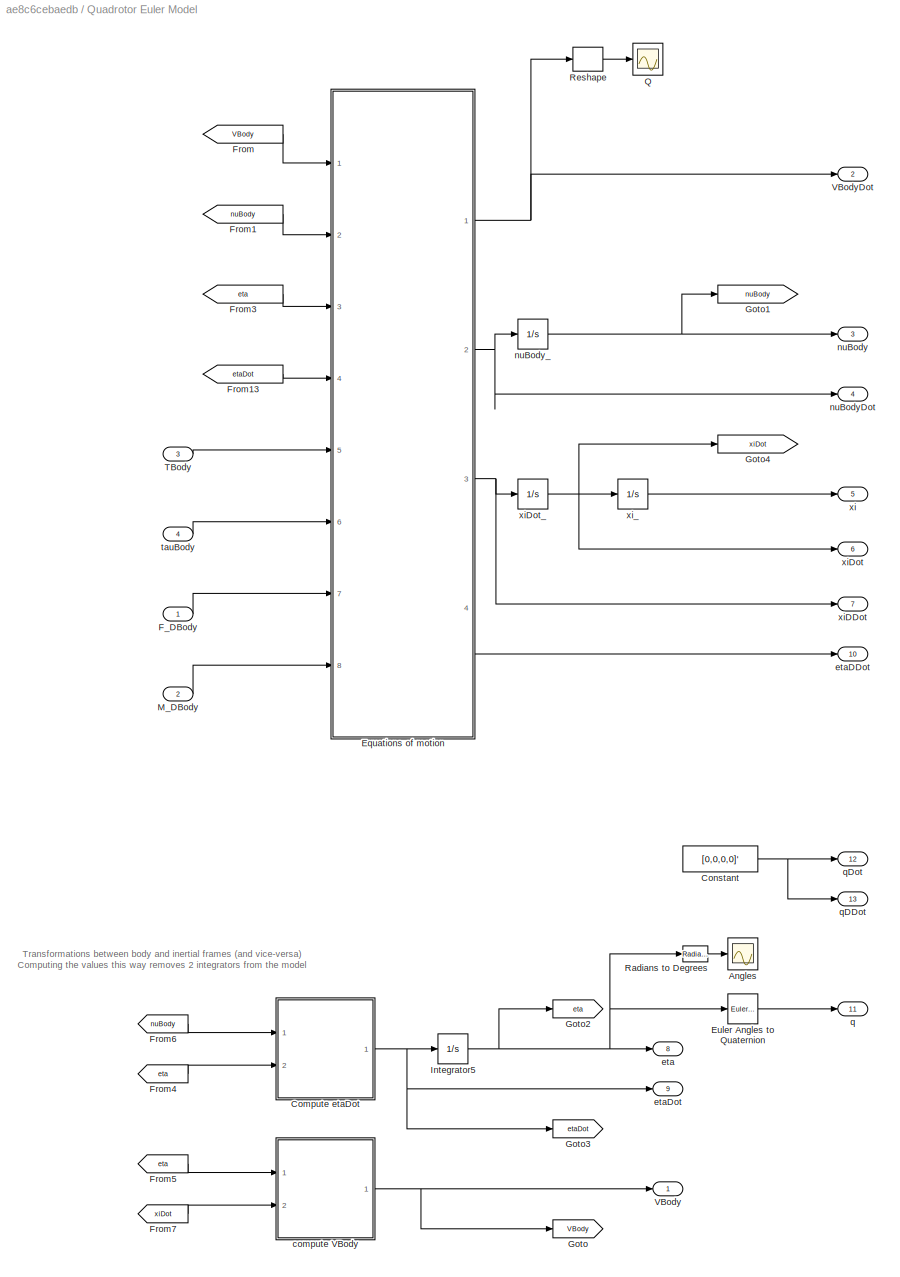
BLOCK [SubSystem] Quadrotor Euler Model
  Ports = [4, 13]
  RequestExecContextInheritance = off
BLOCK [Scope] Quadrotor Euler Model/Angles
  Floating = off
  NumInputPorts = 1
  Ports = [1]
  ScopeSpecificationString = Simulink.scopes.TimeScopeBlockCfg('CurrentConfiguration', extmgr.ConfigurationSet(extmgr.Configuration('Core','General UI',true),extmgr.Configuration('Core','Source UI',true),extmgr.Configuration('Sources','WiredSimulink',true,'DataLoggingVariableName','ScopeData1','DataLoggingLimitDataPoints',true,'DataLoggingSaveFormat','Array','DataLoggingDecimation','1','DataLoggingDecimateData',true),extmgr.C...<+1596ch>
BLOCK [SubSystem] Quadrotor Euler Model/Compute etaDot
  ErrorFcn = Stateflow.Translate.translate
  PermitHierarchicalResolution = ExplicitOnly
  Ports = [2, 1]
  RequestExecContextInheritance = off
  SFBlockType = MATLAB Function
  TreatAsAtomicUnit = on
BLOCK [Demux] Quadrotor Euler Model/Compute etaDot/ Demux 
  Outputs = 1
  Ports = [1, 1]
BLOCK [S-Function] Quadrotor Euler Model/Compute etaDot/ SFunction 
  EnableBusSupport = on
  FunctionName = sf_sfun
  PortCounts = [2 2]
  Ports = [2, 2]
  SFcnIsStateOwnerBlock = off
  SFunctionDeploymentMode = off
  Tag = Stateflow S-Function 12
BLOCK [Terminator] Quadrotor Euler Model/Compute etaDot/ Terminator 
BLOCK [Inport] Quadrotor Euler Model/Compute etaDot/eta
  Port = 2
BLOCK [Outport] Quadrotor Euler Model/Compute etaDot/etaDot
  VectorParamsAs1DForOutWhenUnconnected = off
BLOCK [Inport] Quadrotor Euler Model/Compute etaDot/nuBody
BLOCK [Constant] Quadrotor Euler Model/Constant
  Value = [0,0,0,0]'
BLOCK [SubSystem] Quadrotor Euler Model/Equations of motion
  ErrorFcn = Stateflow.Translate.translate
  PermitHierarchicalResolution = ExplicitOnly
  Ports = [8, 4]
  RequestExecContextInheritance = off
  SFBlockType = MATLAB Function
  TreatAsAtomicUnit = on
BLOCK [Demux] Quadrotor Euler Model/Equations of motion/ Demux 
  Outputs = 1
  Ports = [1, 1]
BLOCK [S-Function] Quadrotor Euler Model/Equations of motion/ SFunction 
  EnableBusSupport = on
  FunctionName = sf_sfun
  Parameters = Uav
  PortCounts = [8 5]
  Ports = [8, 5]
  SFcnIsStateOwnerBlock = off
  SFunctionDeploymentMode = off
  Tag = Stateflow S-Function 1
BLOCK [Terminator] Quadrotor Euler Model/Equations of motion/ Terminator 
BLOCK [Inport] Quadrotor Euler Model/Equations of motion/F_D
  Port = 7
BLOCK [Inport] Quadrotor Euler Model/Equations of motion/M_D
  Port = 8
BLOCK [Inport] Quadrotor Euler Model/Equations of motion/TBody
  Port = 5
BLOCK [Inport] Quadrotor Euler Model/Equations of motion/VBody
BLOCK [Outport] Quadrotor Euler Model/Equations of motion/VBodyDot
  VectorParamsAs1DForOutWhenUnconnected = off
BLOCK [Inport] Quadrotor Euler Model/Equations of motion/eta
  Port = 3
BLOCK [Outport] Quadrotor Euler Model/Equations of motion/etaDDot
  Port = 4
  VectorParamsAs1DForOutWhenUnconnected = off
BLOCK [Inport] Quadrotor Euler Model/Equations of motion/etaDot
  Port = 4
BLOCK [Inport] Quadrotor Euler Model/Equations of motion/nuBody
  Port = 2
BLOCK [Outport] Quadrotor Euler Model/Equations of motion/nuBodyDot
  Port = 2
  VectorParamsAs1DForOutWhenUnconnected = off
BLOCK [Inport] Quadrotor Euler Model/Equations of motion/tauBody
  Port = 6
BLOCK [Outport] Quadrotor Euler Model/Equations of motion/xiDDot
  Port = 3
  VectorParamsAs1DForOutWhenUnconnected = off
BLOCK [Reference] Quadrotor Euler Model/Euler Angles to Quaternion  REF=QuaternionLibrary/Euler Angles
to Quaternion
  Ports = [1, 1]
  SourceBlock = QuaternionLibrary/Euler Angles\nto Quaternion
BLOCK [Inport] Quadrotor Euler Model/F_DBody
  Unit = N
BLOCK [From] Quadrotor Euler Model/From
  GotoTag = VBody
BLOCK [From] Quadrotor Euler Model/From1
  GotoTag = nuBody
BLOCK [From] Quadrotor Euler Model/From13
  GotoTag = etaDot
BLOCK [From] Quadrotor Euler Model/From3
  GotoTag = eta
BLOCK [From] Quadrotor Euler Model/From4
  GotoTag = eta
BLOCK [From] Quadrotor Euler Model/From5
  GotoTag = eta
BLOCK [From] Quadrotor Euler Model/From6
  GotoTag = nuBody
BLOCK [From] Quadrotor Euler Model/From7
  GotoTag = xiDot
BLOCK [Goto] Quadrotor Euler Model/Goto
  GotoTag = VBody
BLOCK [Goto] Quadrotor Euler Model/Goto1
  GotoTag = nuBody
BLOCK [Goto] Quadrotor Euler Model/Goto2
  GotoTag = eta
BLOCK [Goto] Quadrotor Euler Model/Goto3
  GotoTag = etaDot
BLOCK [Goto] Quadrotor Euler Model/Goto4
  GotoTag = xiDot
BLOCK [Integrator] Quadrotor Euler Model/Integrator5
  ContinuousStateAttributes = 'eta'
  InitialCondition = Initial.ETA
  Ports = [1, 1]
BLOCK [Inport] Quadrotor Euler Model/M_DBody
  Port = 2
  Unit = N*m
BLOCK [Scope] Quadrotor Euler Model/Q
  Floating = off
  NumInputPorts = 1
  Ports = [1]
  ScopeSpecificationString = Simulink.scopes.TimeScopeBlockCfg('CurrentConfiguration', extmgr.ConfigurationSet(extmgr.Configuration('Core','General UI',true),extmgr.Configuration('Core','Source UI',true),extmgr.Configuration('Sources','WiredSimulink',true,'DataLoggingVariableName','ScopeData3','DataLoggingLimitDataPoints',true,'DataLoggingSaveFormat','Array','DataLoggingDecimation','1','DataLoggingDecimateData',true),extmgr.C...<+1517ch>
BLOCK [Reference] Quadrotor Euler Model/Radians to Degrees  REF=simulink_extras/Transformations/Radians
to Degrees
  Ports = [1, 1]
  SourceBlock = simulink_extras/Transformations/Radians\nto Degrees
  SourceProductBaseCode = SL
  SourceType = RadiansToDegrees
BLOCK [Reshape] Quadrotor Euler Model/Reshape
  OutputDimensionality = Column vector (2-D)
  Ports = [1, 1]
BLOCK [Inport] Quadrotor Euler Model/TBody
  Port = 3
  Unit = N
BLOCK [Outport] Quadrotor Euler Model/VBody
  Unit = m/s
  VectorParamsAs1DForOutWhenUnconnected = off
BLOCK [Outport] Quadrotor Euler Model/VBodyDot
  Port = 2
  Unit = m/s^2
  VectorParamsAs1DForOutWhenUnconnected = off
BLOCK [SubSystem] Quadrotor Euler Model/compute VBody
  ErrorFcn = Stateflow.Translate.translate
  PermitHierarchicalResolution = ExplicitOnly
  Ports = [2, 1]
  RequestExecContextInheritance = off
  SFBlockType = MATLAB Function
  TreatAsAtomicUnit = on
BLOCK [Demux] Quadrotor Euler Model/compute VBody/ Demux 
  Outputs = 1
  Ports = [1, 1]
BLOCK [S-Function] Quadrotor Euler Model/compute VBody/ SFunction 
  EnableBusSupport = on
  FunctionName = sf_sfun
  PortCounts = [2 2]
  Ports = [2, 2]
  SFcnIsStateOwnerBlock = off
  SFunctionDeploymentMode = off
  Tag = Stateflow S-Function 14
BLOCK [Terminator] Quadrotor Euler Model/compute VBody/ Terminator 
BLOCK [Outport] Quadrotor Euler Model/compute VBody/VBody
  VectorParamsAs1DForOutWhenUnconnected = off
BLOCK [Inport] Quadrotor Euler Model/compute VBody/eta
BLOCK [Inport] Quadrotor Euler Model/compute VBody/xiDot
  Port = 2
BLOCK [Outport] Quadrotor Euler Model/eta
  Port = 8
  Unit = rad
  VectorParamsAs1DForOutWhenUnconnected = off
BLOCK [Outport] Quadrotor Euler Model/etaDDot
  Port = 10
  Unit = rad/s^2
  VectorParamsAs1DForOutWhenUnconnected = off
BLOCK [Outport] Quadrotor Euler Model/etaDot
  Port = 9
  Unit = rad/s
  VectorParamsAs1DForOutWhenUnconnected = off
BLOCK [Outport] Quadrotor Euler Model/nuBody
  Port = 3
  Unit = rad/s
  VectorParamsAs1DForOutWhenUnconnected = off
BLOCK [Outport] Quadrotor Euler Model/nuBodyDot
  Port = 4
  Unit = rad/s^2
  VectorParamsAs1DForOutWhenUnconnected = off
BLOCK [Integrator] Quadrotor Euler Model/nuBody_
  ContinuousStateAttributes = 'nuBody'
  InitialCondition = Initial.NU_BODY
  Ports = [1, 1]
BLOCK [Outport] Quadrotor Euler Model/q
  Port = 11
  VectorParamsAs1DForOutWhenUnconnected = off
BLOCK [Outport] Quadrotor Euler Model/qDDot
  Port = 13
  VectorParamsAs1DForOutWhenUnconnected = off
BLOCK [Outport] Quadrotor Euler Model/qDot
  Port = 12
  VectorParamsAs1DForOutWhenUnconnected = off
BLOCK [Inport] Quadrotor Euler Model/tauBody
  Port = 4
  Unit = N*m
BLOCK [Outport] Quadrotor Euler Model/xi
  Port = 5
  Unit = m
  VectorParamsAs1DForOutWhenUnconnected = off
BLOCK [Outport] Quadrotor Euler Model/xiDDot
  Port = 7
  Unit = m/s^2
  VectorParamsAs1DForOutWhenUnconnected = off
BLOCK [Outport] Quadrotor Euler Model/xiDot
  Port = 6
  Unit = m/s
  VectorParamsAs1DForOutWhenUnconnected = off
BLOCK [Integrator] Quadrotor Euler Model/xiDot_
  ContinuousStateAttributes = 'xiDot'
  InitialCondition = Initial.XI_DOT
  Ports = [1, 1]
BLOCK [Integrator] Quadrotor Euler Model/xi_
  ContinuousStateAttributes = 'xi'
  InitialCondition = Initial.XI
  Ports = [1, 1]
BLOCK [Reference] Quaternion to Euler Angles  REF=QuaternionLibrary/Quaternion
to Euler Angles
  Ports = [1, 1]
  SourceBlock = QuaternionLibrary/Quaternion\nto Euler Angles
BLOCK [Reference] Radians to Degrees   REF=QuaternionLibrary/Radians
to Degrees 
  Ports = [1, 1]
  SourceBlock = QuaternionLibrary/Radians\nto Degrees
BLOCK [Reference] Radians to Degrees 1  REF=QuaternionLibrary/Radians
to Degrees 
  Ports = [1, 1]
  SourceBlock = QuaternionLibrary/Radians\nto Degrees
BLOCK [Reference] Radians//s to Degrees//s  REF=QuaternionLibrary/Radians//s
to Degrees//s
  Ports = [1, 1]
  SourceBlock = QuaternionLibrary/Radians//s\nto Degrees//s
BLOCK [Reference] Radians//s to Degrees//s1  REF=QuaternionLibrary/Radians//s
to Degrees//s
  Ports = [1, 1]
  SourceBlock = QuaternionLibrary/Radians//s\nto Degrees//s
BLOCK [Selector] Selector
  IndexOptions = Index vector (dialog)
  Indices = [1:4]
  InputPortWidth = 8
  OutputSizes = 1
  Ports = [1, 1]
BLOCK [Selector] Selector10
  IndexOptions = Index vector (dialog)
  Indices = 3
  InputPortWidth = 3
  OutputSizes = 1
  Ports = [1, 1]
BLOCK [Selector] Selector2
  IndexOptions = Index vector (dialog)
  Indices = 1
  InputPortWidth = 3
  OutputSizes = 1
  Ports = [1, 1]
BLOCK [Selector] Selector3
  IndexOptions = Index vector (dialog)
  Indices = 2
  InputPortWidth = 3
  OutputSizes = 1
  Ports = [1, 1]
BLOCK [Selector] Selector4
  IndexOptions = Index vector (dialog)
  Indices = 3
  InputPortWidth = 3
  OutputSizes = 1
  Ports = [1, 1]
BLOCK [Selector] Selector5
  IndexOptions = Index vector (dialog)
  Indices = 1
  InputPortWidth = 3
  OutputSizes = 1
  Ports = [1, 1]
BLOCK [Selector] Selector6
  IndexOptions = Index vector (dialog)
  Indices = 1
  InputPortWidth = 3
  OutputSizes = 1
  Ports = [1, 1]
BLOCK [Selector] Selector7
  IndexOptions = Index vector (dialog)
  Indices = 2
  InputPortWidth = 3
  OutputSizes = 1
  Ports = [1, 1]
BLOCK [Selector] Selector8
  IndexOptions = Index vector (dialog)
  Indices = 3
  InputPortWidth = 3
  OutputSizes = 1
  Ports = [1, 1]
BLOCK [Selector] Selector9
  IndexOptions = Index vector (dialog)
  Indices = 2
  InputPortWidth = 3
  OutputSizes = 1
  Ports = [1, 1]
BLOCK [Scope] Sim PWM
  Floating = off
  NumInputPorts = 1
  Ports = [1]
  ScopeSpecificationString = Simulink.scopes.TimeScopeBlockCfg('CurrentConfiguration', extmgr.ConfigurationSet(extmgr.Configuration('Core','General UI',true),extmgr.Configuration('Core','Source UI',true),extmgr.Configuration('Sources','WiredSimulink',true,'DataLoggingVariableName','ScopeData2'),extmgr.Configuration('Visuals','Time Domain',true,'SerializedDisplays',{struct('MinYLimReal','-0.21951','MaxYLimReal','0.10868','YLab...<+2456ch>
BLOCK [Sin] Sinusoidal input
  Amplitude = Wind.Ampl
  Bias = Wind.Bias
  Commented = on
  Frequency = Wind.Freq
  Ports = [0, 1]
  SampleTime = 0
BLOCK [Step] Step wind input
  After = Wind.StepFinal
  Before = Wind.StepInit
  SampleTime = 0
  Time = Wind.StepTime
BLOCK [Sum] Sum1
  Inputs = |++
  Ports = [2, 1]
BLOCK [Sum] Sum2
  Inputs = -+|
  Ports = [2, 1]
BLOCK [Scope] TBody
  Floating = off
  NumInputPorts = 3
  Ports = [3]
  ScopeSpecificationString = Simulink.scopes.TimeScopeBlockCfg('CurrentConfiguration', extmgr.ConfigurationSet(extmgr.Configuration('Core','General UI',true),extmgr.Configuration('Core','Source UI',true),extmgr.Configuration('Sources','WiredSimulink',true,'DataLoggingVariableName','ScopeData7'),extmgr.Configuration('Visuals','Time Domain',true,'SerializedDisplays',{struct('MinYLimReal','-2.88223','MaxYLimReal','0.75607','YLab...<+2749ch>
BLOCK [Scope] TMotorIndividual
  Floating = off
  NumInputPorts = 1
  Ports = [1]
  ScopeSpecificationString = Simulink.scopes.TimeScopeBlockCfg('CurrentConfiguration', extmgr.ConfigurationSet(extmgr.Configuration('Core','General UI',true),extmgr.Configuration('Core','Source UI',true),extmgr.Configuration('Sources','WiredSimulink',true,'DataLoggingVariableName','ScopeData2'),extmgr.Configuration('Visuals','Time Domain',true,'SerializedDisplays',{struct('MinYLimReal','-4.88299','MaxYLimReal','0.54255','YLab...<+1877ch>
BLOCK [Terminator] Terminator1
BLOCK [Terminator] Terminator2
BLOCK [Scope] Thrust setpoint
  Floating = off
  NumInputPorts = 1
  Ports = [1]
  ScopeSpecificationString = Simulink.scopes.TimeScopeBlockCfg('CurrentConfiguration', extmgr.ConfigurationSet(extmgr.Configuration('Core','General UI',true),extmgr.Configuration('Core','Source UI',true),extmgr.Configuration('Sources','WiredSimulink',true,'DataLoggingVariableName','ScopeData8'),extmgr.Configuration('Visuals','Time Domain',true,'SerializedDisplays',{struct('MinYLimReal','0.46882','MaxYLimReal','0.5645','YLabel...<+1440ch>
BLOCK [Inport] U
  PortDimensions = 3
BLOCK [FromWorkspace] Varying wind input
  VariableName = windInput
BLOCK [Scope] Wind Input
  Floating = off
  NumInputPorts = 1
  Ports = [1]
  ScopeSpecificationString = Simulink.scopes.TimeScopeBlockCfg('CurrentConfiguration', extmgr.ConfigurationSet(extmgr.Configuration('Core','General UI',true),extmgr.Configuration('Core','Source UI',true),extmgr.Configuration('Sources','WiredSimulink',true,'DataLoggingVariableName','ScopeData1'),extmgr.Configuration('Visuals','Time Domain',true,'SerializedDisplays',{struct('MinYLimReal','-0.5625','MaxYLimReal','5.0625','YLabel...<+1465ch>
BLOCK [From] att_from_q
  GotoTag = q
  Tag = q
BLOCK [Scope] eta
  Floating = off
  NumInputPorts = 3
  Ports = [3]
  ScopeSpecificationString = Simulink.scopes.TimeScopeBlockCfg('CurrentConfiguration', extmgr.ConfigurationSet(extmgr.Configuration('Core','General UI',true),extmgr.Configuration('Core','Source UI',true),extmgr.Configuration('Sources','WiredSimulink',true,'DataLoggingVariableName','ScopeData9'),extmgr.Configuration('Visuals','Time Domain',true,'SerializedDisplays',{struct('MinYLimReal','-0.00345','MaxYLimReal','0.03108','YLab...<+2743ch>
BLOCK [Scope] omega
  Floating = off
  NumInputPorts = 1
  Ports = [1]
  ScopeSpecificationString = Simulink.scopes.TimeScopeBlockCfg('CurrentConfiguration', extmgr.ConfigurationSet(extmgr.Configuration('Core','General UI',true),extmgr.Configuration('Core','Source UI',true),extmgr.Configuration('Sources','WiredSimulink',true,'DataLoggingVariableName','ScopeData1'),extmgr.Configuration('Visuals','Time Domain',true,'SerializedDisplays',{struct('MinYLimReal','1188.85313','MaxYLimReal','1519.59381',...<+1868ch>
BLOCK [Scope] realPwm
  Floating = off
  NumInputPorts = 1
  Ports = [1]
  ScopeSpecificationString = Simulink.scopes.TimeScopeBlockCfg('CurrentConfiguration', extmgr.ConfigurationSet(extmgr.Configuration('Core','General UI',true),extmgr.Configuration('Core','Source UI',true),extmgr.Configuration('Sources','WiredSimulink',true,'DataLoggingVariableName','ScopeData2'),extmgr.Configuration('Visuals','Time Domain',true,'SerializedDisplays',{struct('MinYLimReal','1173.65246','MaxYLimReal','1844.0675','...<+1542ch>
BLOCK [Scope] tauBody
  Floating = off
  NumInputPorts = 3
  Ports = [3]
  ScopeSpecificationString = Simulink.scopes.TimeScopeBlockCfg('CurrentConfiguration', extmgr.ConfigurationSet(extmgr.Configuration('Core','General UI',true),extmgr.Configuration('Core','Source UI',true),extmgr.Configuration('Sources','WiredSimulink',true,'DataLoggingVariableName','ScopeData10'),extmgr.Configuration('Visuals','Time Domain',true,'SerializedDisplays',{struct('MinYLimReal','-0.01366','MaxYLimReal','0.05401','YLa...<+2746ch>
BLOCK [Scope] tauMotorIndividual
  Floating = off
  NumInputPorts = 1
  Ports = [1]
  ScopeSpecificationString = Simulink.scopes.TimeScopeBlockCfg('CurrentConfiguration', extmgr.ConfigurationSet(extmgr.Configuration('Core','General UI',true),extmgr.Configuration('Core','Source UI',true),extmgr.Configuration('Sources','WiredSimulink',true,'DataLoggingVariableName','ScopeData1'),extmgr.Configuration('Visuals','Time Domain',true,'SerializedDisplays',{struct('MinYLimReal','-0.43698','MaxYLimReal','0.43698','YLab...<+1877ch>
ANNOTATION (root): Important Notes NED coordinate system used, therefore xBody faces forward, yBody faces to the right and zBody faces down. PX4 rotor assignment for quadcopter: 1: front right 2: back left 3: front left 4: back right Airframe reference available at: https://dev.px4.io/en/airframes/airframe_reference.html
ANNOTATION (root): Variables Description Variable Vector notation Frame Description xi [x y z] World Position eta [phi theta psi] World Roll pitch yaw orientation nuBody [p q r] Body Angular velocity q [qW qAx1 qAx2 qAx3] World Quaternion orientation Uav.GAMMA [gamma1 ... gammaN] Body Angle to motor (CCW around body z-axis) Uav.ZETA zeta Body Rotor cant angle
ANNOTATION (root): Attitude Controller
ANNOTATION (root): Inputs
ANNOTATION (root): Position Controller
ANNOTATION (root): Information
ANNOTATION (root): Motor and Aero Dynamics
ANNOTATION (root): Plots
ANNOTATION (root): Applied Wind Speed
ANNOTATION (root): Plant
ANNOTATION Quadrotor Euler Model: Transformations between body and inertial frames (and vice-versa) Computing the values this way removes 2 integrators from the model
LINE Applied wind speed/Compute V_app2:1 -> Applied wind speed/Sum1:2
LINE Applied wind speed/Gain1:1 -> Applied wind speed/Relative velocity:1
LINE Applied wind speed/Gain:1 -> Applied wind speed/Sum:1
LINE Applied wind speed/Quaternion to Rotation Matrix1:1 -> Applied wind speed/Compute V_app2:1
NET Applied wind speed/Relative velocity:1 -> Applied wind speed/Relative velocities:1, Applied wind speed/Sum:2
NET Applied wind speed/Sum1:1 -> Applied wind speed/Gain:1, Applied wind speed/V_appBody:1
LINE Applied wind speed/Sum:1 -> Applied wind speed/VMotor_appBody:1
LINE Applied wind speed/U:1 -> Applied wind speed/Compute V_app2:2
LINE Applied wind speed/VBody:1 -> Applied wind speed/Sum1:1
NET Applied wind speed/nuBody:1 -> Applied wind speed/Gain1:1, Applied wind speed/Rotational velocities:1
LINE Applied wind speed/q:1 -> Applied wind speed/Quaternion to Rotation Matrix1:1
LINE Applied wind speed:1 -> Goto39:1
LINE Applied wind speed:2 -> Goto38:1
LINE Attitude Controller/Attitude P gains:1 -> Attitude Controller/Attitude loop (nonlinear P control):5
NET Attitude Controller/Attitude loop (nonlinear P control):1 -> Attitude Controller/Selector10:1, Attitude Controller/Selector6:1, Attitude Controller/Selector8:1, Attitude Controller/rates_sp:1
LINE Attitude Controller/Auto mode max rates (deg//s):1 -> Attitude Controller/Degrees to Radians:1
LINE Attitude Controller/Constant5:1 -> Attitude Controller/Mux1:2
LINE Attitude Controller/Degrees to Radians:1 -> Attitude Controller/Attitude loop (nonlinear P control):6
LINE Attitude Controller/Gain:1 -> Attitude Controller/Attitude loop (nonlinear P control):3
LINE Attitude Controller/Mux1:1 -> Attitude Controller/actuators_control:1
LINE Attitude Controller/Mux2:1 -> Attitude Controller/Mux:1
LINE Attitude Controller/Mux:1 -> Attitude Controller/Mux1:1
LINE Attitude Controller/Pitch rate PID/Add:1 -> Attitude Controller/Pitch rate PID/Out:1
LINE Attitude Controller/Pitch rate PID/D filter:1 -> Attitude Controller/Pitch rate PID/D:1
LINE Attitude Controller/Pitch rate PID/D:1 -> Attitude Controller/Pitch rate PID/Add:3
LINE Attitude Controller/Pitch rate PID/I:1 -> Attitude Controller/Pitch rate PID/Integrator1:1
LINE Attitude Controller/Pitch rate PID/Integrator1:1 -> Attitude Controller/Pitch rate PID/Add:2
LINE Attitude Controller/Pitch rate PID/P:1 -> Attitude Controller/Pitch rate PID/Add:1
NET Attitude Controller/Pitch rate PID/Sum:1 -> Attitude Controller/Pitch rate PID/I:1, Attitude Controller/Pitch rate PID/P:1
NET Attitude Controller/Pitch rate PID/meas:1 -> Attitude Controller/Pitch rate PID/D filter:1, Attitude Controller/Pitch rate PID/Sum:2
LINE Attitude Controller/Pitch rate PID/ref:1 -> Attitude Controller/Pitch rate PID/Sum:1
LINE Attitude Controller/Pitch rate PID:1 -> Attitude Controller/Mux2:2
LINE Attitude Controller/Roll rate PID/Add:1 -> Attitude Controller/Roll rate PID/Out:1
LINE Attitude Controller/Roll rate PID/D filter:1 -> Attitude Controller/Roll rate PID/D:1
LINE Attitude Controller/Roll rate PID/D:1 -> Attitude Controller/Roll rate PID/Add:3
LINE Attitude Controller/Roll rate PID/I:1 -> Attitude Controller/Roll rate PID/Integrator1:1
LINE Attitude Controller/Roll rate PID/Integrator1:1 -> Attitude Controller/Roll rate PID/Add:2
LINE Attitude Controller/Roll rate PID/P:1 -> Attitude Controller/Roll rate PID/Add:1
NET Attitude Controller/Roll rate PID/Sum:1 -> Attitude Controller/Roll rate PID/I:1, Attitude Controller/Roll rate PID/P:1
NET Attitude Controller/Roll rate PID/meas:1 -> Attitude Controller/Roll rate PID/D filter:1, Attitude Controller/Roll rate PID/Sum:2
LINE Attitude Controller/Roll rate PID/ref:1 -> Attitude Controller/Roll rate PID/Sum:1
LINE Attitude Controller/Roll rate PID:1 -> Attitude Controller/Mux2:1
LINE Attitude Controller/Selector10:1 -> Attitude Controller/Yaw rate PID:1
LINE Attitude Controller/Selector11:1 -> Attitude Controller/Yaw rate PID:2
LINE Attitude Controller/Selector6:1 -> Attitude Controller/Roll rate PID:1
LINE Attitude Controller/Selector7:1 -> Attitude Controller/Roll rate PID:2
LINE Attitude Controller/Selector8:1 -> Attitude Controller/Pitch rate PID:1
LINE Attitude Controller/Selector9:1 -> Attitude Controller/Pitch rate PID:2
LINE Attitude Controller/Yaw rate PID/Add:1 -> Attitude Controller/Yaw rate PID/Out:1
LINE Attitude Controller/Yaw rate PID/D filter:1 -> Attitude Controller/Yaw rate PID/D:1
LINE Attitude Controller/Yaw rate PID/D:1 -> Attitude Controller/Yaw rate PID/Add:3
LINE Attitude Controller/Yaw rate PID/I:1 -> Attitude Controller/Yaw rate PID/Integrator1:1
LINE Attitude Controller/Yaw rate PID/Integrator1:1 -> Attitude Controller/Yaw rate PID/Add:2
LINE Attitude Controller/Yaw rate PID/P:1 -> Attitude Controller/Yaw rate PID/Add:1
NET Attitude Controller/Yaw rate PID/Sum:1 -> Attitude Controller/Yaw rate PID/I:1, Attitude Controller/Yaw rate PID/P:1
NET Attitude Controller/Yaw rate PID/meas:1 -> Attitude Controller/Yaw rate PID/D filter:1, Attitude Controller/Yaw rate PID/Sum:2
LINE Attitude Controller/Yaw rate PID/ref:1 -> Attitude Controller/Yaw rate PID/Sum:1
LINE Attitude Controller/Yaw rate PID:1 -> Attitude Controller/Mux2:3
NET Attitude Controller/nuBody:1 -> Attitude Controller/Selector11:1, Attitude Controller/Selector7:1, Attitude Controller/Selector9:1
LINE Attitude Controller/q:1 -> Attitude Controller/Attitude loop (nonlinear P control):1
LINE Attitude Controller/qd:1 -> Attitude Controller/Attitude loop (nonlinear P control):2
LINE Attitude Controller/thrust_sp1:1 -> Attitude Controller/Mux:2
LINE Attitude Controller/thrust_sp:1 -> Attitude Controller/Gain:1
LINE Attitude Controller/yaw_sp_move_rate:1 -> Attitude Controller/Attitude loop (nonlinear P control):4
LINE Attitude Controller:1 -> Selector:1
LINE Attitude Controller:2 -> Goto20:1
LINE Compute Sph:1 -> Terminator1:1
LINE Compute Sph:2 -> Terminator2:1
LINE Compute Sph:3 -> Max error:1
LINE Constant2:1 -> Sum2:1
NET Constant:1 -> Goto21:1, Pos Control:1
LINE Demux1:1 -> TBody:1
LINE Demux1:2 -> TBody:2
LINE Demux1:3 -> TBody:3
LINE Demux2:1 -> tauBody:1
LINE Demux2:2 -> tauBody:2
LINE Demux2:3 -> tauBody:3
LINE Demux3:1 -> Mux4:2
LINE Demux3:2 -> Mux3:2
LINE Demux3:3 -> Mux2:2
LINE Demux4:1 -> Mux9:2
LINE Demux4:2 -> Mux8:2
LINE Demux4:3 -> Mux7:2
LINE Demux6:1 -> Mux6:2
LINE Demux6:2 -> Mux5:2
LINE Demux6:3 -> Mux1:2
LINE Demux:1 -> eta:1
LINE Demux:2 -> eta:2
LINE Demux:3 -> eta:3
NET Drag model:1 -> Goto18:1, Quadrotor Euler Model:1
LINE Drag model:2 -> Quadrotor Euler Model:2
LINE Fixed wind input:1 -> Multiport Switch:3
LINE From10:1 -> Motor model:2
LINE From11:1 -> Pos Control:3
LINE From12:1 -> Drag force:1
LINE From13:1 -> Motor model:4
NET From14:1 -> Compute Sph:1, L2 norm:1
LINE From15:1 -> Pos Control:4
LINE From16:1 -> Demux:1
LINE From17:1 -> Radians to Degrees 1:1
LINE From18:1 -> Thrust setpoint:1
LINE From19:1 -> Demux1:1
LINE From1:1 -> Motor model:5
LINE From20:1 -> Demux2:1
LINE From21:1 -> Pos Control:5
LINE From22:1 -> Quaternion to Euler Angles:1
LINE From23:1 -> Demux3:1
LINE From24:1 -> Radians//s to Degrees//s1:1
LINE From25:1 -> Radians//s to Degrees//s:1
LINE From26:1 -> Applied wind speed:2
LINE From27:1 -> Applied wind speed:1
LINE From28:1 -> omega:1
LINE From2:1 -> Applied wind speed:4
LINE From38:1 -> Drag model:5
LINE From3:1 -> Drag model:2
LINE From4:1 -> Drag model:3
LINE From5:1 -> Motor model:3
NET From6:1 -> Selector2:1, Selector3:1, Selector4:1
LINE From7:1 -> Pos Control:2
LINE From8:1 -> Attitude Controller:5
LINE From9:1 -> Applied wind speed:3
LINE From:1 -> Drag model:1
LINE Gain4:1 -> Sum2:2
LINE Horizontal mixing matrix:1 -> Matrix Multiply1:1
LINE Input choice:1 -> Multiport Switch:1
LINE L2 norm:1 -> Max error1:1
LINE Logging buffer/Rate Transition:1 -> Logging buffer/pwmOut:1
LINE Logging buffer/pwmIn:1 -> Logging buffer/Rate Transition:1
LINE Logging buffer:1 -> Motor model:1
LINE Map [-1,1] to [0,1]/Constant:1 -> Map [-1,1] to [0,1]/Sum:1
LINE Map [-1,1] to [0,1]/Gain4:1 -> Map [-1,1] to [0,1]/out:1
LINE Map [-1,1] to [0,1]/Sum:1 -> Map [-1,1] to [0,1]/Gain4:1
LINE Map [-1,1] to [0,1]/in:1 -> Map [-1,1] to [0,1]/Sum:2
LINE Map [-1,1] to [0,1]:1 -> Logging buffer:1
LINE Matrix Multiply1:1 -> Sum1:2
LINE Matrix Multiply:1 -> Sum1:1
LINE Mixing matrix:1 -> Matrix Multiply:1
NET Motor map:1 -> Map [-1,1] to [0,1]:1, Sim PWM:1
LINE Motor model 2/Combined motor force//torque:1 -> Motor model 2/TBody:1
LINE Motor model 2/Combined motor force//torque:2 -> Motor model 2/tauBody:1
LINE Motor model 2/Compute Sph:1 -> Motor model 2/Goto33:1
LINE Motor model 2/From1:1 -> Motor model 2/Individual motor force//torque:2
LINE Motor model 2/From3:1 -> Motor model 2/Individual motor force//torque:1
LINE Motor model 2/From5:1 -> Motor model 2/Combined motor force//torque:3
LINE Motor model 2/From6:1 -> Motor model 2/Individual motor force//torque:3
NET Motor model 2/Individual motor force//torque:1 -> Motor model 2/Combined motor force//torque:1, Motor model 2/TMotorIndividual:1
NET Motor model 2/Individual motor force//torque:2 -> Motor model 2/Combined motor force//torque:2, Motor model 2/tauMotorIndividual:1
NET Motor model 2/Integrator:1 -> Motor model 2/Goto2:1, Motor model 2/Motor rotational dynamics:2, Motor model 2/omega:1
NET Motor model 2/Motor rotational dynamics:1 -> Motor model 2/Goto1:1, Motor model 2/Integrator:1
LINE Motor model 2/Motor rotational dynamics:2 -> Motor model 2/realPwm:1
LINE Motor model 2/VMotor_appBody:1 -> Motor model 2/Terminator1:1
LINE Motor model 2/V_appBody:1 -> Motor model 2/Compute Sph:1
LINE Motor model 2/eta:1 -> Motor model 2/Terminator:1
LINE Motor model 2/nuBody:1 -> Motor model 2/Combined motor force//torque:4
LINE Motor model 2/pwm:1 -> Motor model 2/Motor rotational dynamics:1
NET Motor model:1 -> Drag model:4, Goto19:1
NET Motor model:2 -> Goto16:1, Quadrotor Euler Model:3
NET Motor model:3 -> Goto17:1, Quadrotor Euler Model:4
LINE Motor model:4 -> TMotorIndividual:1
LINE Motor model:5 -> tauMotorIndividual:1
LINE Motor model:6 -> realPwm:1
NET Multiport Switch:1 -> Goto15:1, Wind Input:1
LINE Mux1:1 -> Attitude:3
LINE Mux2:1 -> Position:3
LINE Mux3:1 -> Position:2
LINE Mux4:1 -> Position:1
LINE Mux5:1 -> Attitude:2
LINE Mux6:1 -> Attitude:1
LINE Mux7:1 -> Angular rates:3
LINE Mux8:1 -> Angular rates:2
LINE Mux9:1 -> Angular rates:1
LINE Pos Control - base/Constant1:1 -> Pos Control - base/yawRateDes:1
LINE Pos Control - base/Constant:1 -> Pos Control - base/MATLAB Function1:2
LINE Pos Control - base/Demux1:1 -> Pos Control - base/MATLAB Function1:1
LINE Pos Control - base/Demux1:2 -> Pos Control - base/Rotation:2
LINE Pos Control - base/Feedback gain/Demux1:1 -> Pos Control - base/Feedback gain/Sum2:2
LINE Pos Control - base/Feedback gain/Demux1:2 -> Pos Control - base/Feedback gain/Sum1:2
LINE Pos Control - base/Feedback gain/Demux2:1 -> Pos Control - base/Feedback gain/Sum3:2
LINE Pos Control - base/Feedback gain/Demux2:2 -> Pos Control - base/Feedback gain/Sum5:2
LINE Pos Control - base/Feedback gain/Demux3:1 -> Pos Control - base/Feedback gain/Mux:1
LINE Pos Control - base/Feedback gain/Demux3:10 -> Pos Control - base/Feedback gain/Mux3:1
LINE Pos Control - base/Feedback gain/Demux3:11 -> Pos Control - base/Feedback gain/Mux3:2
LINE Pos Control - base/Feedback gain/Demux3:12 -> Pos Control - base/Feedback gain/K_zDDotF:1
LINE Pos Control - base/Feedback gain/Demux3:2 -> Pos Control - base/Feedback gain/Mux:2
NET Pos Control - base/Feedback gain/Demux3:3 -> Pos Control - base/Feedback gain/K_z:1, Pos Control - base/Feedback gain/K_zP:1
LINE Pos Control - base/Feedback gain/Demux3:4 -> Pos Control - base/Feedback gain/Mux1:1
LINE Pos Control - base/Feedback gain/Demux3:5 -> Pos Control - base/Feedback gain/Mux1:2
LINE Pos Control - base/Feedback gain/Demux3:6 -> Pos Control - base/Feedback gain/K_zDot:1
LINE Pos Control - base/Feedback gain/Demux3:7 -> Pos Control - base/Feedback gain/Mux2:1
LINE Pos Control - base/Feedback gain/Demux3:8 -> Pos Control - base/Feedback gain/Mux2:2
LINE Pos Control - base/Feedback gain/Demux3:9 -> Pos Control - base/Feedback gain/K_zInt:1
LINE Pos Control - base/Feedback gain/Demux4:1 -> Pos Control - base/Feedback gain/Sum4:2
LINE Pos Control - base/Feedback gain/Demux4:2 -> Pos Control - base/Feedback gain/Sum6:2
LINE Pos Control - base/Feedback gain/Demux5:1 -> Pos Control - base/Feedback gain/Sum11:1
LINE Pos Control - base/Feedback gain/Demux5:2 -> Pos Control - base/Feedback gain/Sum10:1
LINE Pos Control - base/Feedback gain/Demux6:1 -> Pos Control - base/Feedback gain/Sum11:2
LINE Pos Control - base/Feedback gain/Demux6:2 -> Pos Control - base/Feedback gain/Sum10:2
LINE Pos Control - base/Feedback gain/Demux7:1 -> Pos Control - base/Feedback gain/Sum12:2
LINE Pos Control - base/Feedback gain/Demux7:2 -> Pos Control - base/Feedback gain/Sum14:2
LINE Pos Control - base/Feedback gain/Demux8:1 -> Pos Control - base/Feedback gain/Mux5:1
LINE Pos Control - base/Feedback gain/Demux8:10 -> Pos Control - base/Feedback gain/Mux8:1
LINE Pos Control - base/Feedback gain/Demux8:11 -> Pos Control - base/Feedback gain/Mux8:2
LINE Pos Control - base/Feedback gain/Demux8:12 -> Pos Control - base/Feedback gain/K_zDDotFH:1
LINE Pos Control - base/Feedback gain/Demux8:2 -> Pos Control - base/Feedback gain/Mux5:2
LINE Pos Control - base/Feedback gain/Demux8:3 -> Pos Control - base/Feedback gain/K_zH:1
LINE Pos Control - base/Feedback gain/Demux8:4 -> Pos Control - base/Feedback gain/Mux6:1
LINE Pos Control - base/Feedback gain/Demux8:5 -> Pos Control - base/Feedback gain/Mux6:2
LINE Pos Control - base/Feedback gain/Demux8:6 -> Pos Control - base/Feedback gain/K_zDotH:1
LINE Pos Control - base/Feedback gain/Demux8:7 -> Pos Control - base/Feedback gain/Mux7:1
LINE Pos Control - base/Feedback gain/Demux8:8 -> Pos Control - base/Feedback gain/Mux7:2
LINE Pos Control - base/Feedback gain/Demux8:9 -> Pos Control - base/Feedback gain/K_zIntH:1
LINE Pos Control - base/Feedback gain/Demux9:1 -> Pos Control - base/Feedback gain/Sum13:2
LINE Pos Control - base/Feedback gain/Demux9:2 -> Pos Control - base/Feedback gain/Sum15:2
LINE Pos Control - base/Feedback gain/Demux:1 -> Pos Control - base/Feedback gain/Sum2:1
LINE Pos Control - base/Feedback gain/Demux:2 -> Pos Control - base/Feedback gain/Sum1:1
NET Pos Control - base/Feedback gain/Invert sign:1 -> Pos Control - base/Feedback gain/Demux3:1, Pos Control - base/Feedback gain/Demux8:1
LINE Pos Control - base/Feedback gain/K_xy:1 -> Pos Control - base/Feedback gain/Sum:2
LINE Pos Control - base/Feedback gain/K_xyDDotF:1 -> Pos Control - base/Feedback gain/Demux4:1
LINE Pos Control - base/Feedback gain/K_xyDDotFH:1 -> Pos Control - base/Feedback gain/Demux9:1
LINE Pos Control - base/Feedback gain/K_xyDot:1 -> Pos Control - base/Feedback gain/Demux1:1
LINE Pos Control - base/Feedback gain/K_xyDotH:1 -> Pos Control - base/Feedback gain/Demux6:1
LINE Pos Control - base/Feedback gain/K_xyH:1 -> Pos Control - base/Feedback gain/Sum20:2
LINE Pos Control - base/Feedback gain/K_xyHP:1 -> Pos Control - base/Feedback gain/Sum20:1
LINE Pos Control - base/Feedback gain/K_xyInt:1 -> Pos Control - base/Feedback gain/Demux2:1
LINE Pos Control - base/Feedback gain/K_xyIntH:1 -> Pos Control - base/Feedback gain/Demux7:1
LINE Pos Control - base/Feedback gain/K_xyP:1 -> Pos Control - base/Feedback gain/Sum:1
LINE Pos Control - base/Feedback gain/K_z:1 -> Pos Control - base/Feedback gain/Sum19:2
LINE Pos Control - base/Feedback gain/K_zDDotF:1 -> Pos Control - base/Feedback gain/Sum9:2
LINE Pos Control - base/Feedback gain/K_zDDotFH:1 -> Pos Control - base/Feedback gain/Sum18:2
LINE Pos Control - base/Feedback gain/K_zDot:1 -> Pos Control - base/Feedback gain/Sum7:2
LINE Pos Control - base/Feedback gain/K_zDotH:1 -> Pos Control - base/Feedback gain/Sum16:2
LINE Pos Control - base/Feedback gain/K_zH:1 -> Pos Control - base/Feedback gain/Sum16:1
LINE Pos Control - base/Feedback gain/K_zInt:1 -> Pos Control - base/Feedback gain/Sum8:2
LINE Pos Control - base/Feedback gain/K_zIntH:1 -> Pos Control - base/Feedback gain/Sum17:2
LINE Pos Control - base/Feedback gain/K_zP:1 -> Pos Control - base/Feedback gain/Sum19:1
LINE Pos Control - base/Feedback gain/Mux10:1 -> Pos Control - base/Feedback gain/u:1
LINE Pos Control - base/Feedback gain/Mux1:1 -> Pos Control - base/Feedback gain/K_xyDot:1
LINE Pos Control - base/Feedback gain/Mux2:1 -> Pos Control - base/Feedback gain/K_xyInt:1
LINE Pos Control - base/Feedback gain/Mux3:1 -> Pos Control - base/Feedback gain/K_xyDDotF:1
LINE Pos Control - base/Feedback gain/Mux4:1 -> Pos Control - base/Feedback gain/Mux10:1
NET Pos Control - base/Feedback gain/Mux5:1 -> Pos Control - base/Feedback gain/K_xyH:1, Pos Control - base/Feedback gain/K_xyHP:1
LINE Pos Control - base/Feedback gain/Mux6:1 -> Pos Control - base/Feedback gain/K_xyDotH:1
LINE Pos Control - base/Feedback gain/Mux7:1 -> Pos Control - base/Feedback gain/K_xyIntH:1
LINE Pos Control - base/Feedback gain/Mux8:1 -> Pos Control - base/Feedback gain/K_xyDDotFH:1
LINE Pos Control - base/Feedback gain/Mux9:1 -> Pos Control - base/Feedback gain/Mux10:2
NET Pos Control - base/Feedback gain/Mux:1 -> Pos Control - base/Feedback gain/K_xy:1, Pos Control - base/Feedback gain/K_xyP:1
LINE Pos Control - base/Feedback gain/Sum10:1 -> Pos Control - base/Feedback gain/Sum14:1
LINE Pos Control - base/Feedback gain/Sum11:1 -> Pos Control - base/Feedback gain/Sum12:1
LINE Pos Control - base/Feedback gain/Sum12:1 -> Pos Control - base/Feedback gain/Sum13:1
LINE Pos Control - base/Feedback gain/Sum13:1 -> Pos Control - base/Feedback gain/Mux9:1
LINE Pos Control - base/Feedback gain/Sum14:1 -> Pos Control - base/Feedback gain/Sum15:1
LINE Pos Control - base/Feedback gain/Sum15:1 -> Pos Control - base/Feedback gain/Mux9:2
LINE Pos Control - base/Feedback gain/Sum16:1 -> Pos Control - base/Feedback gain/Sum17:1
LINE Pos Control - base/Feedback gain/Sum17:1 -> Pos Control - base/Feedback gain/Sum18:1
LINE Pos Control - base/Feedback gain/Sum18:1 -> Pos Control - base/Feedback gain/Mux9:3
LINE Pos Control - base/Feedback gain/Sum19:1 -> Pos Control - base/Feedback gain/Sum7:1
LINE Pos Control - base/Feedback gain/Sum1:1 -> Pos Control - base/Feedback gain/Sum5:1
LINE Pos Control - base/Feedback gain/Sum20:1 -> Pos Control - base/Feedback gain/Demux5:1
LINE Pos Control - base/Feedback gain/Sum2:1 -> Pos Control - base/Feedback gain/Sum3:1
LINE Pos Control - base/Feedback gain/Sum3:1 -> Pos Control - base/Feedback gain/Sum4:1
LINE Pos Control - base/Feedback gain/Sum4:1 -> Pos Control - base/Feedback gain/Mux4:1
LINE Pos Control - base/Feedback gain/Sum5:1 -> Pos Control - base/Feedback gain/Sum6:1
LINE Pos Control - base/Feedback gain/Sum6:1 -> Pos Control - base/Feedback gain/Mux4:2
LINE Pos Control - base/Feedback gain/Sum7:1 -> Pos Control - base/Feedback gain/Sum8:1
LINE Pos Control - base/Feedback gain/Sum8:1 -> Pos Control - base/Feedback gain/Sum9:1
LINE Pos Control - base/Feedback gain/Sum9:1 -> Pos Control - base/Feedback gain/Mux4:3
LINE Pos Control - base/Feedback gain/Sum:1 -> Pos Control - base/Feedback gain/Demux:1
LINE Pos Control - base/Feedback gain/y:1 -> Pos Control - base/Feedback gain/Invert sign:1
LINE Pos Control - base/Feedback gain:1 -> Pos Control - base/Sum4:1
LINE Pos Control - base/Filtered Derivative/D filter x:1 -> Pos Control - base/Filtered Derivative/Mux2:1
LINE Pos Control - base/Filtered Derivative/D filter y:1 -> Pos Control - base/Filtered Derivative/Mux2:2
LINE Pos Control - base/Filtered Derivative/D filter z:1 -> Pos Control - base/Filtered Derivative/Mux2:3
LINE Pos Control - base/Filtered Derivative/Demux:1 -> Pos Control - base/Filtered Derivative/D filter x:1
LINE Pos Control - base/Filtered Derivative/Demux:2 -> Pos Control - base/Filtered Derivative/D filter y:1
LINE Pos Control - base/Filtered Derivative/Demux:3 -> Pos Control - base/Filtered Derivative/D filter z:1
LINE Pos Control - base/Filtered Derivative/Mux2:1 -> Pos Control - base/Filtered Derivative/xiDDotF:1
LINE Pos Control - base/Filtered Derivative/xiDot:1 -> Pos Control - base/Filtered Derivative/Demux:1
LINE Pos Control - base/Filtered Derivative:1 -> Pos Control - base/Mux3:4
LINE Pos Control - base/Gain:1 -> Pos Control - base/thrust_sp:1
LINE Pos Control - base/Hover throttle:1 -> Pos Control - base/Sum4:2
LINE Pos Control - base/Integrator:1 -> Pos Control - base/Mux3:3
LINE Pos Control - base/MATLAB Function1:1 -> Pos Control - base/qd:1
LINE Pos Control - base/MATLAB Function1:2 -> Pos Control - base/Gain:1
LINE Pos Control - base/Mux3:1 -> Pos Control - base/Feedback gain:1
NET Pos Control - base/Rotation/2D Rotation Matrix/Cos:1 -> Pos Control - base/Rotation/2D Rotation Matrix/Mux1:2, Pos Control - base/Rotation/2D Rotation Matrix/Mux:1
LINE Pos Control - base/Rotation/2D Rotation Matrix/Gain:1 -> Pos Control - base/Rotation/2D Rotation Matrix/Mux:2
NET Pos Control - base/Rotation/2D Rotation Matrix/Matrix Concatenate:1 -> Pos Control - base/Rotation/2D Rotation Matrix/Display:1, Pos Control - base/Rotation/2D Rotation Matrix/R:1
LINE Pos Control - base/Rotation/2D Rotation Matrix/Mux1:1 -> Pos Control - base/Rotation/2D Rotation Matrix/Matrix Concatenate:2
LINE Pos Control - base/Rotation/2D Rotation Matrix/Mux:1 -> Pos Control - base/Rotation/2D Rotation Matrix/Matrix Concatenate:1
NET Pos Control - base/Rotation/2D Rotation Matrix/Sin:1 -> Pos Control - base/Rotation/2D Rotation Matrix/Gain:1, Pos Control - base/Rotation/2D Rotation Matrix/Mux1:1
NET Pos Control - base/Rotation/2D Rotation Matrix/psi:1 -> Pos Control - base/Rotation/2D Rotation Matrix/Cos:1, Pos Control - base/Rotation/2D Rotation Matrix/Sin:1
LINE Pos Control - base/Rotation/2D Rotation Matrix:1 -> Pos Control - base/Rotation/Matrix Multiply:1
LINE Pos Control - base/Rotation/Constant3:1 -> Pos Control - base/Rotation/Switch:2
LINE Pos Control - base/Rotation/Matrix Multiply:1 -> Pos Control - base/Rotation/Switch:1
LINE Pos Control - base/Rotation/Quaternion to Euler Angles:1 -> Pos Control - base/Rotation/Selector:1
NET Pos Control - base/Rotation/Selector1:1 -> Pos Control - base/Rotation/Matrix Multiply:2, Pos Control - base/Rotation/Switch:3
LINE Pos Control - base/Rotation/Selector:1 -> Pos Control - base/Rotation/2D Rotation Matrix:1
LINE Pos Control - base/Rotation/Switch:1 -> Pos Control - base/Rotation/THBody:1
LINE Pos Control - base/Rotation/THWorld:1 -> Pos Control - base/Rotation/Selector1:1
LINE Pos Control - base/Rotation/q:1 -> Pos Control - base/Rotation/Quaternion to Euler Angles:1
LINE Pos Control - base/Rotation:1 -> Pos Control - base/horThrust:1
LINE Pos Control - base/Sum4:1 -> Pos Control - base/Demux1:1
NET Pos Control - base/Sum:1 -> Pos Control - base/Integrator:1, Pos Control - base/Mux3:1
LINE Pos Control - base/nuBody:1 -> Pos Control - base/Terminator:1
LINE Pos Control - base/q:1 -> Pos Control - base/Rotation:1
LINE Pos Control - base/xi:1 -> Pos Control - base/Sum:2
LINE Pos Control - base/xiDes:1 -> Pos Control - base/Sum:1
NET Pos Control - base/xiDot:1 -> Pos Control - base/Filtered Derivative:1, Pos Control - base/Mux3:2
LINE Pos Control/Constant1:1 -> Pos Control/yawRateDes:1
LINE Pos Control/Constant:1 -> Pos Control/MATLAB Function1:2
LINE Pos Control/Filtered Derivative/D filter x:1 -> Pos Control/Filtered Derivative/Mux2:1
LINE Pos Control/Filtered Derivative/D filter y:1 -> Pos Control/Filtered Derivative/Mux2:2
LINE Pos Control/Filtered Derivative/D filter z:1 -> Pos Control/Filtered Derivative/Mux2:3
LINE Pos Control/Filtered Derivative/Demux:1 -> Pos Control/Filtered Derivative/D filter x:1
LINE Pos Control/Filtered Derivative/Demux:2 -> Pos Control/Filtered Derivative/D filter y:1
LINE Pos Control/Filtered Derivative/Demux:3 -> Pos Control/Filtered Derivative/D filter z:1
LINE Pos Control/Filtered Derivative/Mux2:1 -> Pos Control/Filtered Derivative/xiDDotF:1
LINE Pos Control/Filtered Derivative/xiDot:1 -> Pos Control/Filtered Derivative/Demux:1
LINE Pos Control/Filtered Derivative:1 -> Pos Control/Terminator1:1
LINE Pos Control/Fixed attThrustDes:1 -> Pos Control/Mux:2
LINE Pos Control/Fixed horThrustDes:1 -> Pos Control/Mux:1
LINE Pos Control/Gain4:1 -> Pos Control/Sum4:1
LINE Pos Control/Gain:1 -> Pos Control/thrust_sp:1
LINE Pos Control/Ground:1 -> Pos Control/Mux12:2
LINE Pos Control/Integrator:1 -> Pos Control/Mux3:1
LINE Pos Control/MATLAB Function1:1 -> Pos Control/qd:1
LINE Pos Control/MATLAB Function1:2 -> Pos Control/Gain:1
LINE Pos Control/Mux12:1 -> Pos Control/Rotation:2
LINE Pos Control/Mux3:1 -> Pos Control/Gain4:1
LINE Pos Control/Mux:1 -> Pos Control/Sum4:2
NET Pos Control/Rotation/2D Rotation Matrix/Cos:1 -> Pos Control/Rotation/2D Rotation Matrix/Mux1:2, Pos Control/Rotation/2D Rotation Matrix/Mux:1
LINE Pos Control/Rotation/2D Rotation Matrix/Gain:1 -> Pos Control/Rotation/2D Rotation Matrix/Mux:2
NET Pos Control/Rotation/2D Rotation Matrix/Matrix Concatenate:1 -> Pos Control/Rotation/2D Rotation Matrix/Display:1, Pos Control/Rotation/2D Rotation Matrix/R:1
LINE Pos Control/Rotation/2D Rotation Matrix/Mux1:1 -> Pos Control/Rotation/2D Rotation Matrix/Matrix Concatenate:2
LINE Pos Control/Rotation/2D Rotation Matrix/Mux:1 -> Pos Control/Rotation/2D Rotation Matrix/Matrix Concatenate:1
NET Pos Control/Rotation/2D Rotation Matrix/Sin:1 -> Pos Control/Rotation/2D Rotation Matrix/Gain:1, Pos Control/Rotation/2D Rotation Matrix/Mux1:1
NET Pos Control/Rotation/2D Rotation Matrix/psi:1 -> Pos Control/Rotation/2D Rotation Matrix/Cos:1, Pos Control/Rotation/2D Rotation Matrix/Sin:1
LINE Pos Control/Rotation/2D Rotation Matrix:1 -> Pos Control/Rotation/Matrix Multiply:1
LINE Pos Control/Rotation/Constant3:1 -> Pos Control/Rotation/Switch:2
LINE Pos Control/Rotation/Matrix Multiply:1 -> Pos Control/Rotation/Switch:1
LINE Pos Control/Rotation/Quaternion to Euler Angles:1 -> Pos Control/Rotation/Selector:1
NET Pos Control/Rotation/Selector1:1 -> Pos Control/Rotation/Matrix Multiply:2, Pos Control/Rotation/Switch:3
LINE Pos Control/Rotation/Selector:1 -> Pos Control/Rotation/2D Rotation Matrix:1
LINE Pos Control/Rotation/Switch:1 -> Pos Control/Rotation/THBody:1
LINE Pos Control/Rotation/THWorld:1 -> Pos Control/Rotation/Selector1:1
LINE Pos Control/Rotation/q:1 -> Pos Control/Rotation/Quaternion to Euler Angles:1
LINE Pos Control/Rotation:1 -> Pos Control/horThrust:1
LINE Pos Control/Selector11:1 -> Pos Control/Mux12:1
LINE Pos Control/Selector1:1 -> Pos Control/MATLAB Function1:1
NET Pos Control/Sum4:1 -> Pos Control/Selector11:1, Pos Control/Selector1:1
NET Pos Control/Sum:1 -> Pos Control/Integrator:1, Pos Control/Mux3:3
LINE Pos Control/nuBody:1 -> Pos Control/Terminator:1
LINE Pos Control/q:1 -> Pos Control/Rotation:1
LINE Pos Control/xi:1 -> Pos Control/Sum:1
LINE Pos Control/xiDes:1 -> Pos Control/Sum:2
NET Pos Control/xiDot:1 -> Pos Control/Filtered Derivative:1, Pos Control/Mux3:2
LINE Pos Control1/Constant1:1 -> Pos Control1/yawRateDes:1
LINE Pos Control1/Constant2:1 -> Pos Control1/Sum:2
LINE Pos Control1/Constant4:1 -> Pos Control1/Sum2:1
LINE Pos Control1/Constant5:1 -> Pos Control1/Sum3:1
LINE Pos Control1/Demux:1 -> Pos Control1/Mux1:1
LINE Pos Control1/Demux:2 -> Pos Control1/Mux1:2
LINE Pos Control1/Demux:3 -> Pos Control1/Mux1:3
LINE Pos Control1/Demux:4 -> Pos Control1/Mux2:1
LINE Pos Control1/Demux:5 -> Pos Control1/Mux2:2
LINE Pos Control1/Demux:6 -> Pos Control1/Sum:1
LINE Pos Control1/Euler Angles to Quaternion:1 -> Pos Control1/qd:1
LINE Pos Control1/K/Demux1:1 -> Pos Control1/K/Sum:2
LINE Pos Control1/K/Demux1:2 -> Pos Control1/K/Invert1:1
LINE Pos Control1/K/Demux2:1 -> Pos Control1/K/Sum3:1
LINE Pos Control1/K/Demux2:2 -> Pos Control1/K/Sum4:1
LINE Pos Control1/K/Demux3:1 -> Pos Control1/K/Mux:1
LINE Pos Control1/K/Demux3:2 -> Pos Control1/K/Mux:2
LINE Pos Control1/K/Demux3:3 -> Pos Control1/K/Terminator:1
LINE Pos Control1/K/Demux3:4 -> Pos Control1/K/Mux1:1
LINE Pos Control1/K/Demux3:5 -> Pos Control1/K/Mux1:2
LINE Pos Control1/K/Demux3:6 -> Pos Control1/K/Terminator1:1
LINE Pos Control1/K/Demux4:1 -> Pos Control1/K/Sum3:2
LINE Pos Control1/K/Demux4:2 -> Pos Control1/K/Sum4:2
LINE Pos Control1/K/Demux5:1 -> Pos Control1/K/Mux3:1
LINE Pos Control1/K/Demux5:2 -> Pos Control1/K/Mux3:2
LINE Pos Control1/K/Demux5:3 -> Pos Control1/K/K_z_T:1
LINE Pos Control1/K/Demux5:4 -> Pos Control1/K/Mux4:1
LINE Pos Control1/K/Demux5:5 -> Pos Control1/K/Mux4:2
LINE Pos Control1/K/Demux5:6 -> Pos Control1/K/K_zDot_T:1
LINE Pos Control1/K/Demux:1 -> Pos Control1/K/Sum:1
LINE Pos Control1/K/Demux:2 -> Pos Control1/K/Invert:1
LINE Pos Control1/K/Ground:1 -> Pos Control1/K/Mux2:3
LINE Pos Control1/K/Invert1:1 -> Pos Control1/K/Sum1:2
LINE Pos Control1/K/Invert:1 -> Pos Control1/K/Sum1:1
LINE Pos Control1/K/K_xDotyDot_T:1 -> Pos Control1/K/Demux4:1
LINE Pos Control1/K/K_xDotyDot_att:1 -> Pos Control1/K/Demux1:1
LINE Pos Control1/K/K_xy_T:1 -> Pos Control1/K/Demux2:1
LINE Pos Control1/K/K_xy_att:1 -> Pos Control1/K/Demux:1
LINE Pos Control1/K/K_zDot_T:1 -> Pos Control1/K/Sum5:2
LINE Pos Control1/K/K_z_T:1 -> Pos Control1/K/Sum5:1
LINE Pos Control1/K/Mux1:1 -> Pos Control1/K/K_xDotyDot_att:1
LINE Pos Control1/K/Mux2:1 -> Pos Control1/K/Mux6:1
LINE Pos Control1/K/Mux3:1 -> Pos Control1/K/K_xy_T:1
LINE Pos Control1/K/Mux4:1 -> Pos Control1/K/K_xDotyDot_T:1
LINE Pos Control1/K/Mux5:1 -> Pos Control1/K/Mux6:2
LINE Pos Control1/K/Mux6:1 -> Pos Control1/K/u:1
LINE Pos Control1/K/Mux:1 -> Pos Control1/K/K_xy_att:1
LINE Pos Control1/K/Sum1:1 -> Pos Control1/K/Mux2:2
LINE Pos Control1/K/Sum3:1 -> Pos Control1/K/Mux5:1
LINE Pos Control1/K/Sum4:1 -> Pos Control1/K/Mux5:2
LINE Pos Control1/K/Sum5:1 -> Pos Control1/K/Mux5:3
LINE Pos Control1/K/Sum:1 -> Pos Control1/K/Mux2:1
NET Pos Control1/K/e:1 -> Pos Control1/K/Demux3:1, Pos Control1/K/Demux5:1
LINE Pos Control1/K:1 -> Pos Control1/Demux:1
LINE Pos Control1/Mux1:1 -> Pos Control1/Sum3:2
LINE Pos Control1/Mux2:1 -> Pos Control1/Rotation:2
LINE Pos Control1/Mux:1 -> Pos Control1/K:1
NET Pos Control1/Rotation/2D Rotation Matrix/Cos:1 -> Pos Control1/Rotation/2D Rotation Matrix/Mux1:2, Pos Control1/Rotation/2D Rotation Matrix/Mux:1
LINE Pos Control1/Rotation/2D Rotation Matrix/Gain:1 -> Pos Control1/Rotation/2D Rotation Matrix/Mux:2
NET Pos Control1/Rotation/2D Rotation Matrix/Matrix Concatenate:1 -> Pos Control1/Rotation/2D Rotation Matrix/Display:1, Pos Control1/Rotation/2D Rotation Matrix/R:1
LINE Pos Control1/Rotation/2D Rotation Matrix/Mux1:1 -> Pos Control1/Rotation/2D Rotation Matrix/Matrix Concatenate:2
LINE Pos Control1/Rotation/2D Rotation Matrix/Mux:1 -> Pos Control1/Rotation/2D Rotation Matrix/Matrix Concatenate:1
NET Pos Control1/Rotation/2D Rotation Matrix/Sin:1 -> Pos Control1/Rotation/2D Rotation Matrix/Gain:1, Pos Control1/Rotation/2D Rotation Matrix/Mux1:1
NET Pos Control1/Rotation/2D Rotation Matrix/psi:1 -> Pos Control1/Rotation/2D Rotation Matrix/Cos:1, Pos Control1/Rotation/2D Rotation Matrix/Sin:1
LINE Pos Control1/Rotation/2D Rotation Matrix:1 -> Pos Control1/Rotation/Matrix Multiply:1
LINE Pos Control1/Rotation/Matrix Multiply:1 -> Pos Control1/Rotation/ horThrustBody:1
LINE Pos Control1/Rotation/Quaternion to Euler Angles:1 -> Pos Control1/Rotation/Selector:1
NET Pos Control1/Rotation/Selector:1 -> Pos Control1/Rotation/2D Rotation Matrix:1, Pos Control1/Rotation/Scope:1
LINE Pos Control1/Rotation/horThrust :1 -> Pos Control1/Rotation/Matrix Multiply:2
LINE Pos Control1/Rotation/q :1 -> Pos Control1/Rotation/Quaternion to Euler Angles:1
LINE Pos Control1/Rotation:1 -> Pos Control1/horThrust:1
LINE Pos Control1/Sum1:1 -> Pos Control1/Mux:1
LINE Pos Control1/Sum2:1 -> Pos Control1/Mux:2
LINE Pos Control1/Sum3:1 -> Pos Control1/Euler Angles to Quaternion:1
LINE Pos Control1/Sum:1 -> Pos Control1/thrust_sp:1
LINE Pos Control1/nuBody:1 -> Pos Control1/Terminator:1
LINE Pos Control1/q:1 -> Pos Control1/Rotation:1
LINE Pos Control1/xi:1 -> Pos Control1/Sum1:2
LINE Pos Control1/xiDes:1 -> Pos Control1/Sum1:1
LINE Pos Control1/xiDot1:1 -> Pos Control1/Terminator1:1
LINE Pos Control1/xiDot:1 -> Pos Control1/Sum2:2
NET Pos Control:1 -> Attitude Controller:1, Goto13:1
NET Pos Control:2 -> Attitude Controller:2, Goto14:1
LINE Pos Control:3 -> Attitude Controller:3
LINE Pos Control:4 -> Matrix Multiply1:2
NET Quadrotor Euler Model/Compute etaDot:1 -> Quadrotor Euler Model/Goto3:1, Quadrotor Euler Model/Integrator5:1, Quadrotor Euler Model/etaDot:1
NET Quadrotor Euler Model/Constant:1 -> Quadrotor Euler Model/qDDot:1, Quadrotor Euler Model/qDot:1
NET Quadrotor Euler Model/Equations of motion:1 -> Quadrotor Euler Model/Reshape:1, Quadrotor Euler Model/VBodyDot:1
NET Quadrotor Euler Model/Equations of motion:2 -> Quadrotor Euler Model/nuBodyDot:1, Quadrotor Euler Model/nuBody_:1
NET Quadrotor Euler Model/Equations of motion:3 -> Quadrotor Euler Model/xiDDot:1, Quadrotor Euler Model/xiDot_:1
LINE Quadrotor Euler Model/Equations of motion:4 -> Quadrotor Euler Model/etaDDot:1
LINE Quadrotor Euler Model/Euler Angles to Quaternion:1 -> Quadrotor Euler Model/q:1
LINE Quadrotor Euler Model/F_DBody:1 -> Quadrotor Euler Model/Equations of motion:7
LINE Quadrotor Euler Model/From13:1 -> Quadrotor Euler Model/Equations of motion:4
LINE Quadrotor Euler Model/From1:1 -> Quadrotor Euler Model/Equations of motion:2
LINE Quadrotor Euler Model/From3:1 -> Quadrotor Euler Model/Equations of motion:3
LINE Quadrotor Euler Model/From4:1 -> Quadrotor Euler Model/Compute etaDot:2
LINE Quadrotor Euler Model/From5:1 -> Quadrotor Euler Model/compute VBody:1
LINE Quadrotor Euler Model/From6:1 -> Quadrotor Euler Model/Compute etaDot:1
LINE Quadrotor Euler Model/From7:1 -> Quadrotor Euler Model/compute VBody:2
LINE Quadrotor Euler Model/From:1 -> Quadrotor Euler Model/Equations of motion:1
NET Quadrotor Euler Model/Integrator5:1 -> Quadrotor Euler Model/Euler Angles to Quaternion:1, Quadrotor Euler Model/Goto2:1, Quadrotor Euler Model/Radians to Degrees:1, Quadrotor Euler Model/eta:1
LINE Quadrotor Euler Model/M_DBody:1 -> Quadrotor Euler Model/Equations of motion:8
LINE Quadrotor Euler Model/Radians to Degrees:1 -> Quadrotor Euler Model/Angles:1
LINE Quadrotor Euler Model/Reshape:1 -> Quadrotor Euler Model/Q:1
LINE Quadrotor Euler Model/TBody:1 -> Quadrotor Euler Model/Equations of motion:5
NET Quadrotor Euler Model/compute VBody:1 -> Quadrotor Euler Model/Goto:1, Quadrotor Euler Model/VBody:1
NET Quadrotor Euler Model/nuBody_:1 -> Quadrotor Euler Model/Goto1:1, Quadrotor Euler Model/nuBody:1
LINE Quadrotor Euler Model/tauBody:1 -> Quadrotor Euler Model/Equations of motion:6
NET Quadrotor Euler Model/xiDot_:1 -> Quadrotor Euler Model/Goto4:1, Quadrotor Euler Model/xiDot:1, Quadrotor Euler Model/xi_:1
LINE Quadrotor Euler Model/xi_:1 -> Quadrotor Euler Model/xi:1
LINE Quadrotor Euler Model:1 -> Goto:1
LINE Quadrotor Euler Model:10 -> Goto9:1
LINE Quadrotor Euler Model:11 -> Goto10:1
LINE Quadrotor Euler Model:12 -> Goto11:1
LINE Quadrotor Euler Model:13 -> Goto12:1
LINE Quadrotor Euler Model:2 -> Goto1:1
LINE Quadrotor Euler Model:3 -> Goto2:1
LINE Quadrotor Euler Model:4 -> Goto3:1
LINE Quadrotor Euler Model:5 -> Goto4:1
LINE Quadrotor Euler Model:6 -> Goto5:1
LINE Quadrotor Euler Model:7 -> Goto6:1
LINE Quadrotor Euler Model:8 -> Goto7:1
LINE Quadrotor Euler Model:9 -> Goto8:1
LINE Quaternion to Euler Angles:1 -> Radians to Degrees :1
NET Radians to Degrees 1:1 -> Selector6:1, Selector7:1, Selector8:1
LINE Radians to Degrees :1 -> Demux6:1
NET Radians//s to Degrees//s1:1 -> Selector10:1, Selector5:1, Selector9:1
LINE Radians//s to Degrees//s:1 -> Demux4:1
LINE Selector10:1 -> Mux7:1
LINE Selector2:1 -> Mux4:1
LINE Selector3:1 -> Mux3:1
LINE Selector4:1 -> Mux2:1
LINE Selector5:1 -> Mux9:1
LINE Selector6:1 -> Mux6:1
LINE Selector7:1 -> Mux5:1
LINE Selector8:1 -> Mux1:1
LINE Selector9:1 -> Mux8:1
LINE Selector:1 -> Matrix Multiply:2
LINE Sinusoidal input:1 -> Multiport Switch:6
LINE Step wind input:1 -> Multiport Switch:4
LINE Sum1:1 -> Gain4:1
NET Sum2:1 -> Motor map:1, PX4 pwm:1
LINE U:1 -> Multiport Switch:5
LINE Varying wind input:1 -> Multiport Switch:2
LINE att_from_q:1 -> Attitude Controller:4
note: NET lines group one-source signal fan-out (src -> all destinations, sorted); 1:1 wires keep LINE
CHART Attitude Controller/Attitude loop (nonlinear P control) states=1 transitions=1
  STATE_LABEL 'eML_blk_kernel()'
  STATE_LABEL 'SCRIPT:\nfunction rates_sp  = control_attitude( q, qd, thrust_sp, ...\n    yaw_sp_move_rate, attitude_gain, auto_rate_max )\n    %thrust_sp = -thrust_sp;\n\n    roll_pitch_gain = ( attitude_gain(1) + attitude_gain(2) ) / 2;\n    yaw_w = constrain( attitude_gain(3) / roll_pitch_gain, 0, 1 );\n    attitude_gain(3) = roll_pitch_gain;\n\n    q  = q  ./ norm(q);\n    qd = qd ./ norm(qd);\n\n    e_z   = QuatToDcmZ(...<+2580ch>'
CHART Compute Sph states=1 transitions=1
  STATE_LABEL 'eML_blk_kernel()'
  STATE_LABEL 'SCRIPT:\nfunction [beta, alpha, R] = computeSph(in)\n%#codegen\n\n% Convert from polar to spherical coordinates\n[ beta, alpha, R ] = cart2sph( in(1), in(2), in(3) );'
CHART Quadrotor Euler Model/Compute etaDot states=1 transitions=1
  STATE_LABEL 'eML_blk_kernel()'
  STATE_LABEL 'SCRIPT:\nfunction etaDot = computeEtaDot(nuBody, eta)\n%#codegen\n\nsPhi = sin(eta(1));\ncPhi = cos(eta(1));\ncTheta = cos(eta(2));\ntTheta = tan(eta(2));\n      \nWInverse = [1, sPhi*tTheta,  cPhi*tTheta;\n            0, cPhi,        -sPhi;\n            0, sPhi/cTheta,  cPhi/cTheta];\n\netaDot = WInverse*nuBody;'
CHART Quadrotor Euler Model/compute VBody states=1 transitions=1
  STATE_LABEL 'eML_blk_kernel()'
  STATE_LABEL 'SCRIPT:\nfunction VBody = computeVBody(eta, xiDot)\n%#codegen\n\nsphi = sin(eta(1));\nsTheta = sin(eta(2));\nsPsi = sin(eta(3));\ncPhi = cos(eta(1));\ncTheta = cos(eta(2));\ncPsi = cos(eta(3));\n\nR = [ cPsi*cTheta, cPsi*sTheta*sphi-sPsi*cPhi, cPsi*sTheta*cPhi+sPsi*sphi;\n\t  sPsi*cTheta, sPsi*sTheta*sphi+cPsi*cPhi, sPsi*sTheta*cPhi-cPsi*sphi;\n     -sTheta,      cTheta*sphi,                cTheta*cPhi+sPsi*sph...<+22ch>'
CHART L2 norm states=1 transitions=1
  STATE_LABEL 'eML_blk_kernel()'
  STATE_LABEL 'SCRIPT:\nfunction y = l2norm( u )\n    y = sqrt( dot(u, u) );\nend\n'
CHART Motor model 2/Compute Sph states=1 transitions=1
  STATE_LABEL 'eML_blk_kernel()'
  STATE_LABEL 'SCRIPT:\nfunction polar  = computeSph(V_appBody)\n%#codegen\n\n% Convert from polar to spherical coordinates\n[ azimuth, elevation, radius ] = cart2sph( V_appBody(1), V_appBody(2), V_appBody(3) );\n\npolar = [azimuth; elevation; radius];'
CHART Motor model 2/Individual motor force//torque states=1 transitions=1
  STATE_LABEL 'eML_blk_kernel()'
  STATE_LABEL 'SCRIPT:\nfunction [TMotorIndividual, tauMotorIndividual] = motorIndividual( ...\n    omega, omegaDot, polarC, Motor, Uav, Aero)\n%#codegen\n    alpha = polarC(2);\n    beta  = polarC(1);\n    U     = polarC(3);\n\n    % Make assertions to avoid code generation errors\n    %assert(Uav.N_ROTORS < 16);\n    % Uav.N_ROTORS = 4;\n\n    % Output\n    % TMotorIndividual   = zeros(3, Uav.N_ROTORS);\n    %tauMotorIndivi...<+1404ch>'
CHART Motor model 2/Combined motor force//torque states=1 transitions=1
  STATE_LABEL 'eML_blk_kernel()'
  STATE_LABEL 'SCRIPT:\nfunction [TBody, tauBody] = motorCombined( TMotorIndividual,tauMotorIndividual,  ...\n    omega, nuBody, Motor, Uav)\n%#codegen\nassert(Uav.N_ROTORS < 16);\n\n% Initialise matrices to store motor force/torque vectors in body frame\nTBodyIndividual   = zeros(3, Uav.N_ROTORS);\ntauBodyIndividual = zeros(3, Uav.N_ROTORS);\n\n% Calculate forces and moments from each motor in the body frame\nfor i = 1:Ua...<+1287ch>'
CHART Motor model 2/Motor rotational dynamics states=1 transitions=1
  STATE_LABEL 'eML_blk_kernel()'
  STATE_LABEL 'SCRIPT:\nfunction [omegaDot, realPwm]  = motorRotDynamics( pwm, omega )\n%#codegen\n\nrealPwm = (1000 * pwm + 1000);\n\nrotorTimeConst = 7.006512e-02;\nomegaRef = 0.84 * ( 7.969173e-1.*realPwm - 6.528579e2 );\n\nomegaDot = (omegaRef - omega) / rotorTimeConst;\nend'
CHART Quadrotor Euler Model/Equations of motion states=1 transitions=1
  STATE_LABEL 'eML_blk_kernel()'
  STATE_LABEL 'SCRIPT:\nfunction [VBodyDot, nuBodyDot, xiDDot, etaDDot] = QuadrotorQuaternionModel(...\n    VBody, nuBody, eta, etaDot, TBody, tauBody, F_D, M_D, Uav )\n%#codegen\n\n%% Rotation matrices\n% Precompute sines and cosines\nsPhi   = sin(eta(1));\nsTheta = sin(eta(2));\nsPsi   = sin(eta(3));\ncPhi   = cos(eta(1));\ncTheta = cos(eta(2));\ncPsi   = cos(eta(3));\ntTheta = tan(eta(2));\n\nphiDot   = etaDot(1);\nthetaDot ...<+995ch>'
CHART Pos Control1/MATLAB Function states=1 transitions=1
  STATE_LABEL 'eML_blk_kernel()'
  STATE_LABEL 'SCRIPT:\nfunction [q_sp, thrust_sp] = thrustToAttitude( thr_sp, yaw_sp )\n\n    yaw_body = yaw_sp;\n    body_z = -thr_sp./norm(thr_sp);\n    \n    y_C = [ -sin(yaw_body); cos(yaw_body); 0 ];\n    \n    body_x = zeros(3,1);\n    if body_z(3) > 0.000001\n        body_x = cross( y_C, body_z );\n        if ( body_z(3) < 0 )\n            body_x = -body_x;\n        end\n        \n        body_x = body_x ./ norm(body_x...<+1387ch>'  <repeated x3 — deduplicated; at blocks: MATLAB Function, MATLAB Function1>
CHART Pos Control - base/MATLAB Function1 states=1 transitions=1
  STATE_LABEL 'eML_blk_kernel()'
CHART Applied wind speed/Relative velocity states=1 transitions=1
  STATE_LABEL 'eML_blk_kernel()'
  STATE_LABEL 'SCRIPT:\nfunction VMotorRelBody = relativeMotorVelocity( nuBody , Uav )\n%#codegen\n    VMotorRelBody = cross( nuBody, Uav.L_VEC );\nend'
CHART Applied wind speed/Compute V_app2 states=1 transitions=1
  STATE_LABEL 'eML_blk_kernel()'
  STATE_LABEL "SCRIPT:\nfunction UBody = computeUBody(Q, U)\n%#codegen\n\n% Rotation matrix from Wind frame to Inertial frame\n% Wind frame SEU, inertial frame NED\nR_U = [1,  0, 0;\n       0, -1, 0;\n       0,  0, 1];\n   \nUBody = Q' * R_U * U;"
CHART Pos Control/MATLAB Function1 states=1 transitions=1
  STATE_LABEL 'eML_blk_kernel()'
CHART  states=0 transitions=0
CHART  states=0 transitions=0
CHART  states=0 transitions=0
CHART  states=0 transitions=0
CHART  states=0 transitions=0
CHART  states=0 transitions=0
CHART  states=0 transitions=0
CHART  states=0 transitions=0
CHART  states=0 transitions=0
CHART  states=0 transitions=0
CHART  states=0 transitions=0
CHART  states=0 transitions=0
CHART  states=0 transitions=0
CHART  states=0 transitions=0
CHART  states=0 transitions=0
